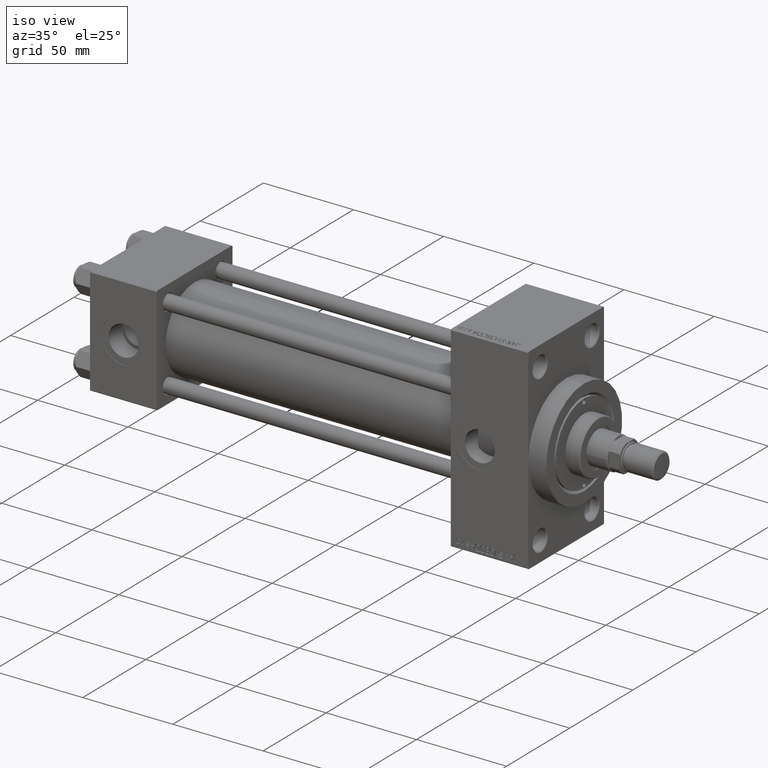
[diagram: clean part render]
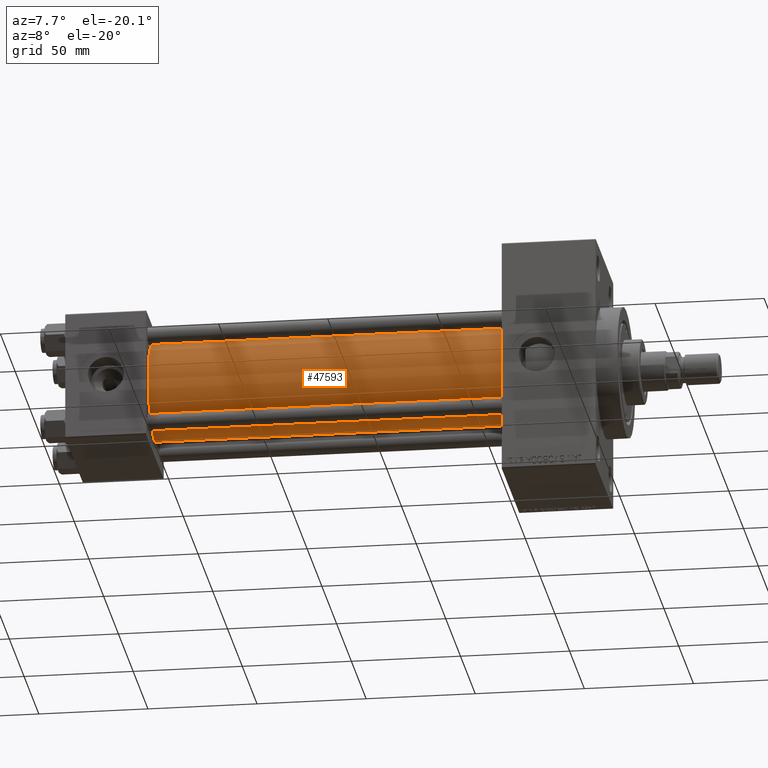
[diagram: tour spotlight — one face highlighted and labeled with its STEP entity id]
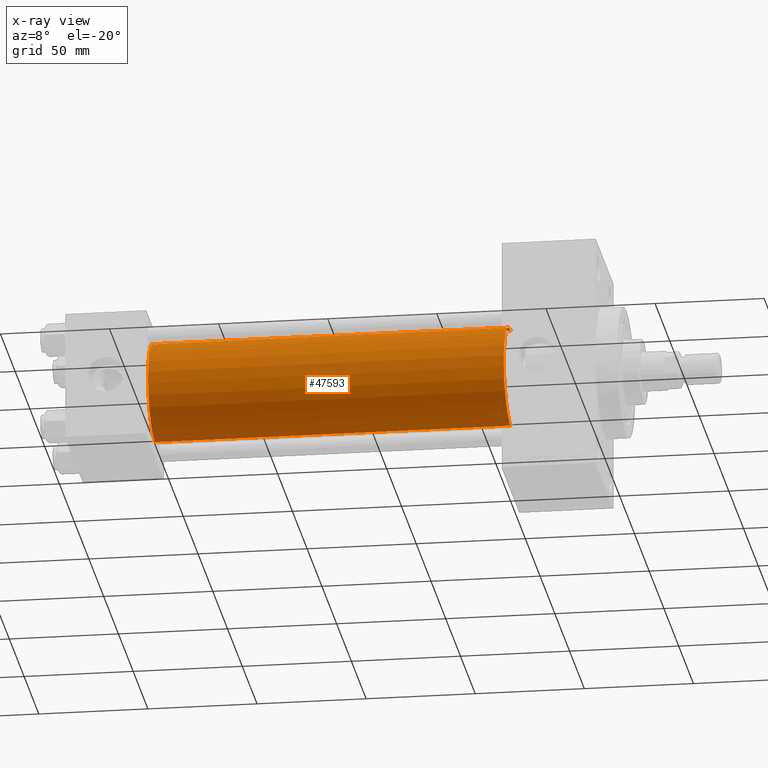
[diagram: x-ray of the same camera — body ghosted, this tour face saturated]
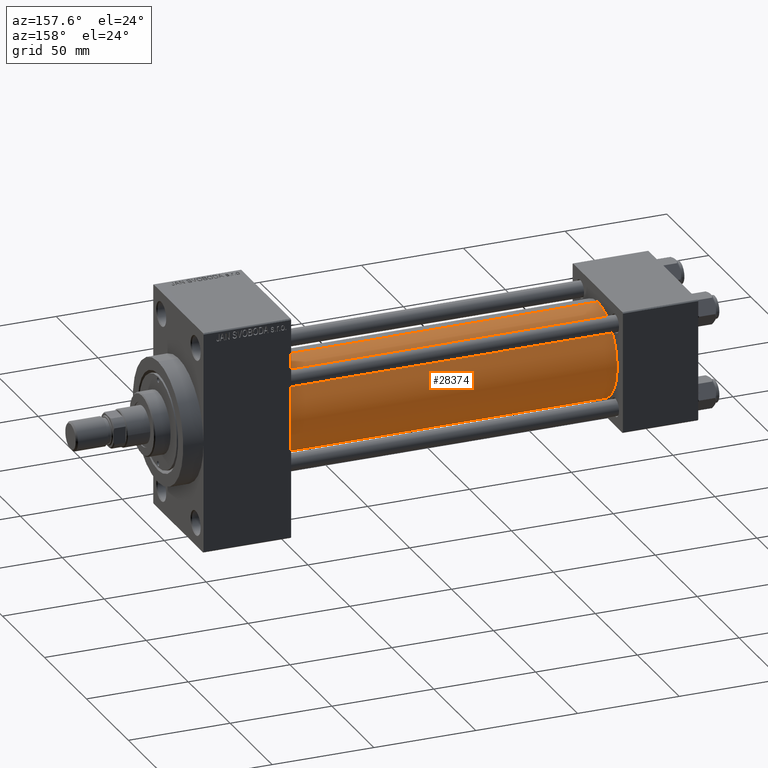
[diagram: tour spotlight — one face highlighted and labeled with its STEP entity id]
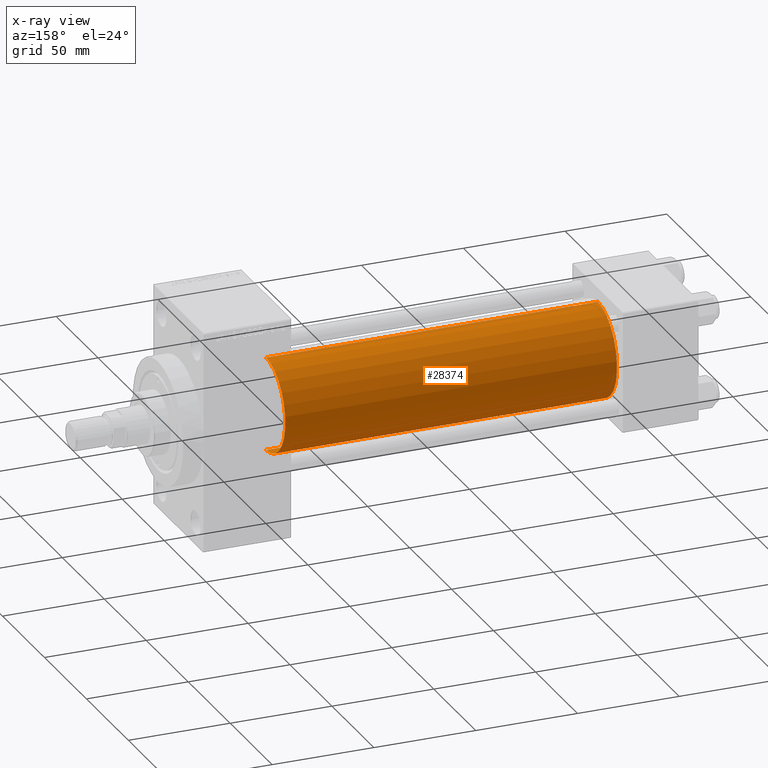
[diagram: x-ray of the same camera — body ghosted, this tour face saturated]
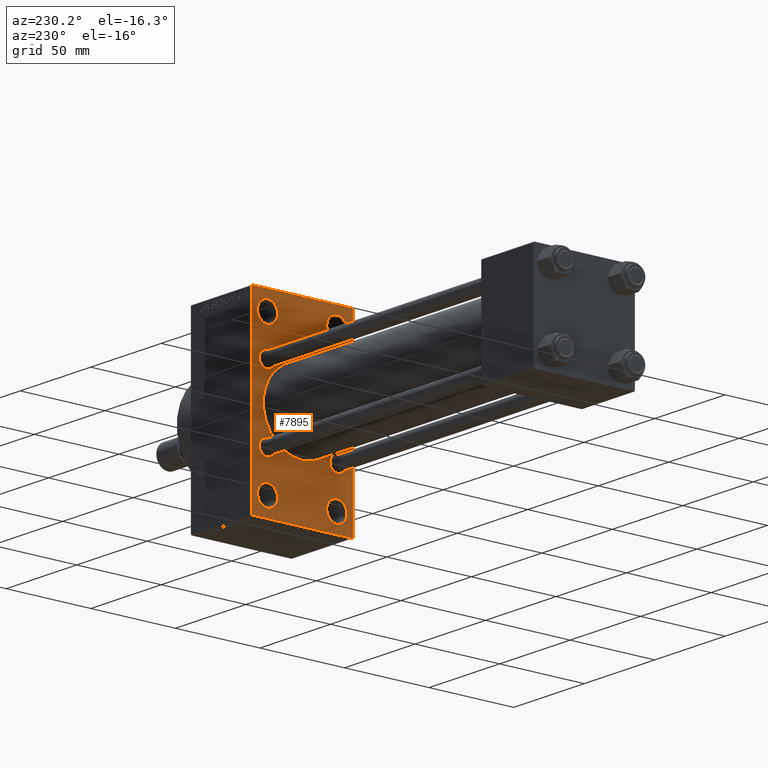
[diagram: tour spotlight — one face highlighted and labeled with its STEP entity id]
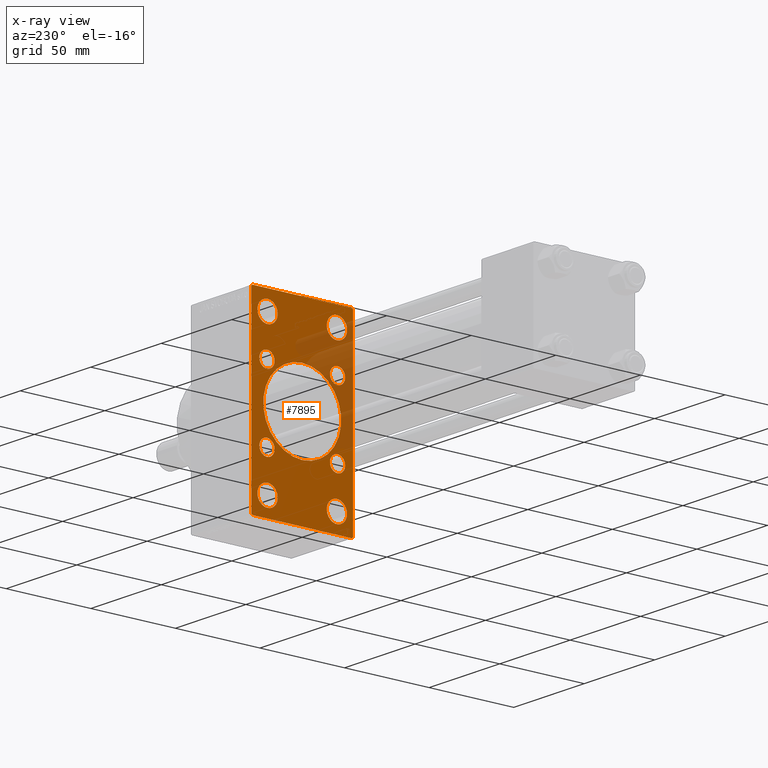
[diagram: x-ray of the same camera — body ghosted, this tour face saturated]
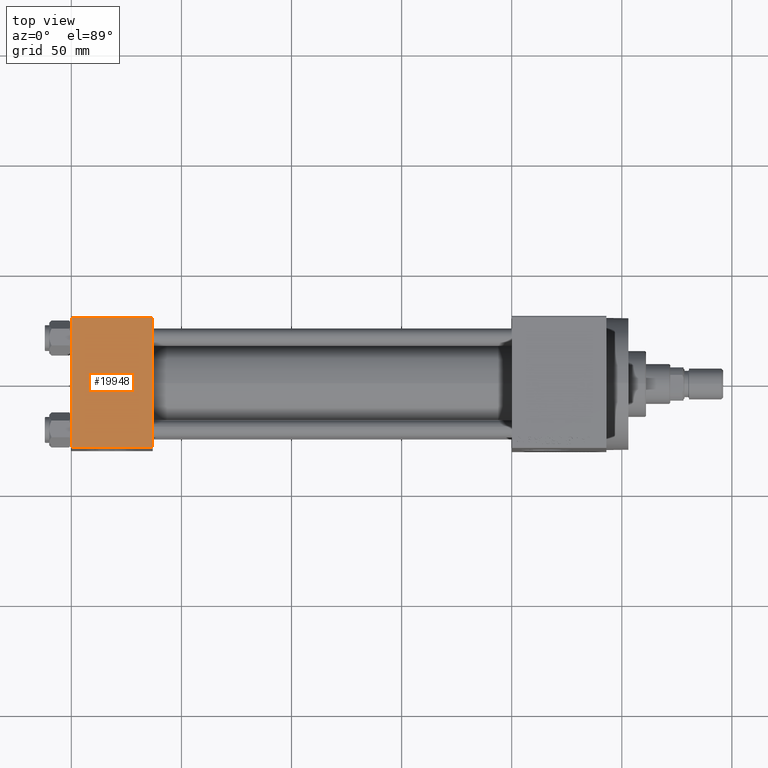
[diagram: tour spotlight — one face highlighted and labeled with its STEP entity id]
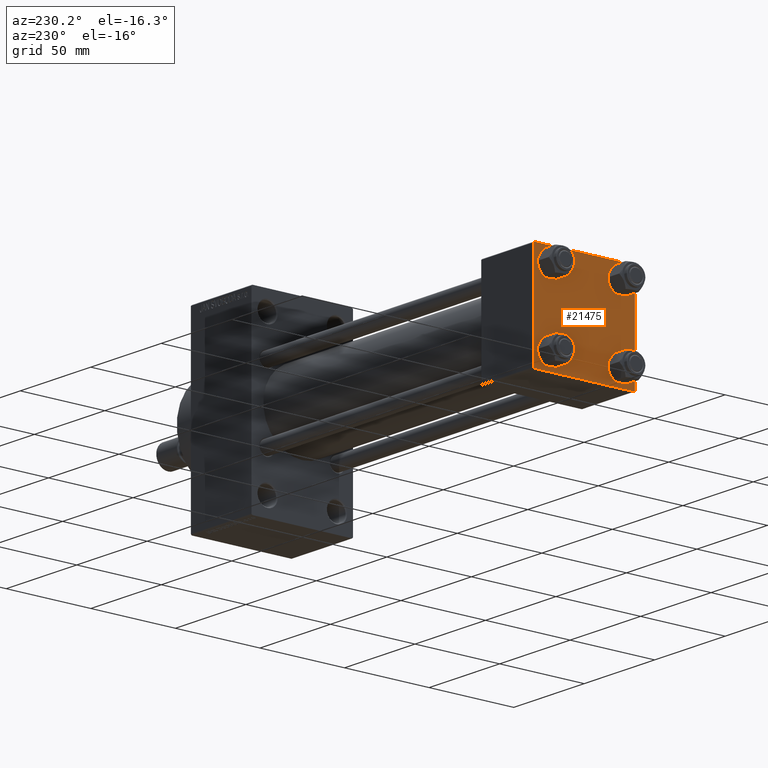
[diagram: tour spotlight — one face highlighted and labeled with its STEP entity id]
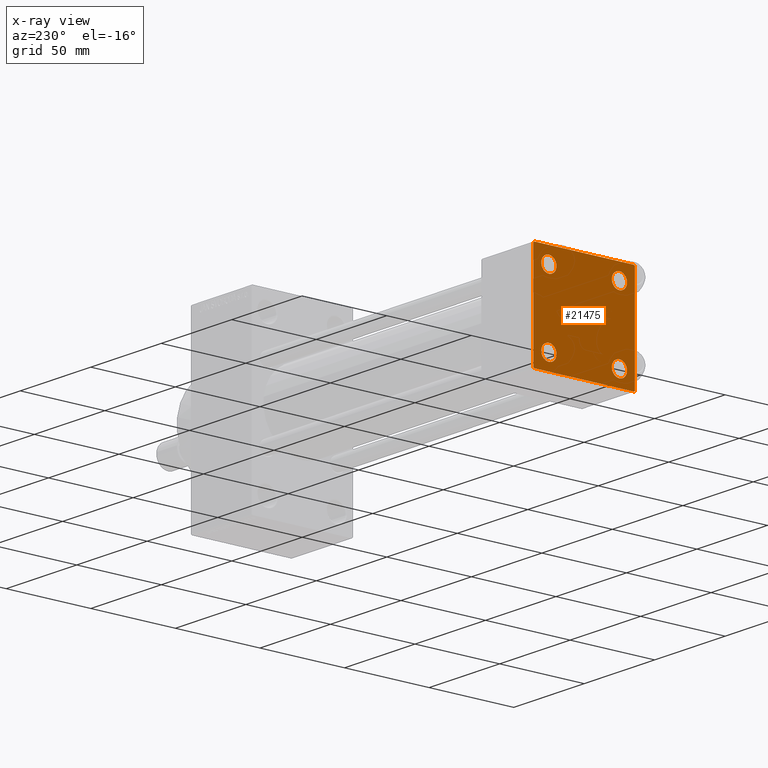
[diagram: x-ray of the same camera — body ghosted, this tour face saturated]
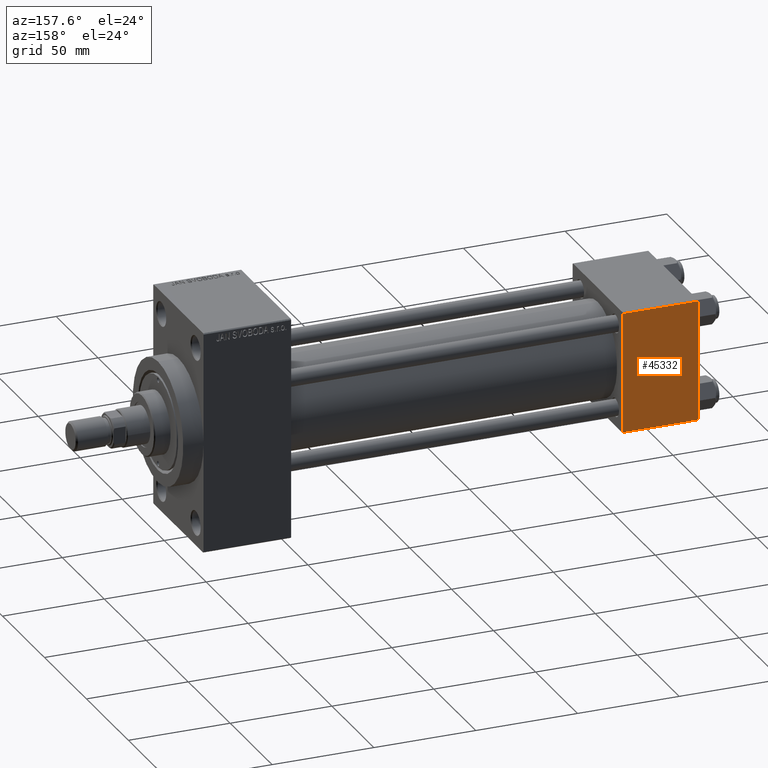
[diagram: tour spotlight — one face highlighted and labeled with its STEP entity id]
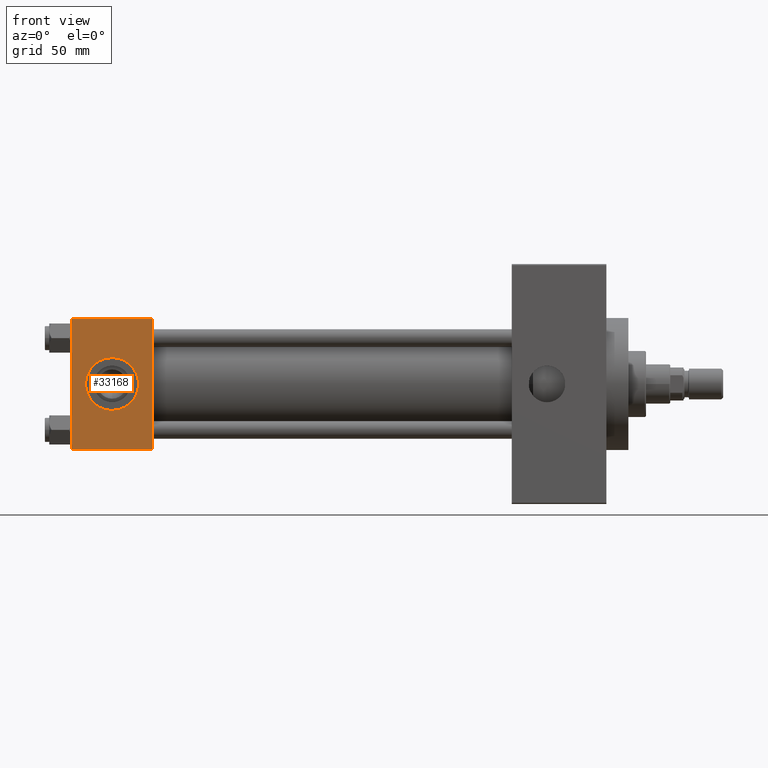
[diagram: tour spotlight — one face highlighted and labeled with its STEP entity id]
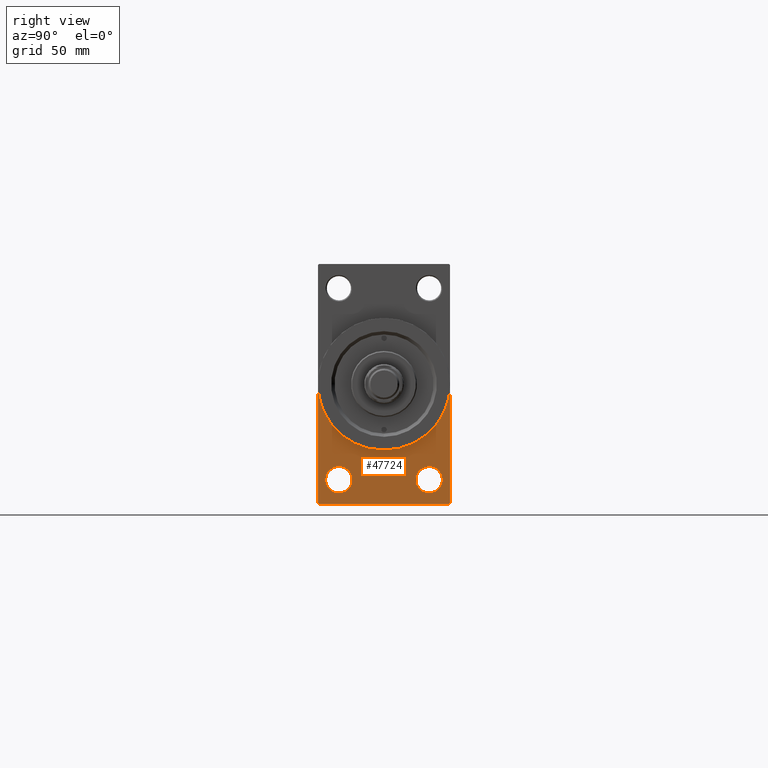
[diagram: tour spotlight — one face highlighted and labeled with its STEP entity id]
A machine part: a face-by-face anatomy tour. The part has 1127 B-rep faces; the first image is the clean iso view, then the 8 largest visible faces are spotlighted one at a time (largest first), each with its STEP entity span.

Face 1 — auxiliary view, entity #47593. An x-ray twin of the same camera follows (body ghosted, this face saturated) — the face is partly hidden behind the body. In plain terms, the highlighted cylindrical surface (partial cylindrical patch) has radius 23 mm, axis along (-1, -0, -0).
Definition (entity closure, byte-faithful):
#1023 = EDGE_CURVE ( 'NONE', #47668, #47522, #10748, .T. ) ;
#1608 = CARTESIAN_POINT ( 'NONE',  ( 200.0000000000000000, -2.602085213965210642E-15, 0.000000000000000000 ) ) ;
#1631 = CARTESIAN_POINT ( 'NONE',  ( 200.0000000000000000, 2.146024240737016609E-16, -23.00000000000000000 ) ) ;
#1660 = CARTESIAN_POINT ( 'NONE',  ( 200.0000000000000000, -2.602085213965210642E-15, 0.000000000000000000 ) ) ;
#7639 = VERTEX_POINT ( 'NONE', #15472 ) ;
#9372 = DIRECTION ( 'NONE',  ( -1.000000000000000000, -0.000000000000000000, -0.000000000000000000 ) ) ;
#10441 = ORIENTED_EDGE ( 'NONE', *, *, #36730, .F. ) ;
#10748 = CIRCLE ( 'NONE', #14639, 23.00000000000000000 ) ;
#11498 = CARTESIAN_POINT ( 'NONE',  ( 37.00000000000000711, -2.602085213965210642E-15, 23.00000000000000000 ) ) ;
#12592 = ORIENTED_EDGE ( 'NONE', *, *, #44326, .F. ) ;
#12818 = DIRECTION ( 'NONE',  ( 1.000000000000000000, 0.000000000000000000, 0.000000000000000000 ) ) ;
#14639 = AXIS2_PLACEMENT_3D ( 'NONE', #23954, #24674, #35569 ) ;
#15182 = ORIENTED_EDGE ( 'NONE', *, *, #1023, .T. ) ;
#15472 = CARTESIAN_POINT ( 'NONE',  ( 200.0000000000000000, -2.602085213965210642E-15, 23.00000000000000000 ) ) ;
#15993 = VERTEX_POINT ( 'NONE', #42128 ) ;
#16375 = CIRCLE ( 'NONE', #25700, 23.00000000000000000 ) ;
#18722 = ORIENTED_EDGE ( 'NONE', *, *, #25039, .T. ) ;
#19595 = LINE ( 'NONE', #1631, #20530 ) ;
#20530 = VECTOR ( 'NONE', #34610, 1000.000000000000000 ) ;
#20853 = CARTESIAN_POINT ( 'NONE',  ( 200.0000000000000000, -2.602085213965210642E-15, 23.00000000000000000 ) ) ;
#23954 = CARTESIAN_POINT ( 'NONE',  ( 37.00000000000000711, -2.602085213965210642E-15, 0.000000000000000000 ) ) ;
#24674 = DIRECTION ( 'NONE',  ( 1.000000000000000000, -0.000000000000000000, 0.000000000000000000 ) ) ;
#25039 = EDGE_CURVE ( 'NONE', #7639, #47668, #39259, .T. ) ;
#25700 = AXIS2_PLACEMENT_3D ( 'NONE', #1660, #12818, #30540 ) ;
#28380 = DIRECTION ( 'NONE',  ( -1.000000000000000000, -0.000000000000000000, -0.000000000000000000 ) ) ;
#29321 = EDGE_LOOP ( 'NONE', ( #12592, #10441, #18722, #15182 ) ) ;
#30540 = DIRECTION ( 'NONE',  ( 0.000000000000000000, 0.000000000000000000, -1.000000000000000000 ) ) ;
#30840 = VECTOR ( 'NONE', #28380, 1000.000000000000000 ) ;
#32183 = FACE_OUTER_BOUND ( 'NONE', #29321, .T. ) ;
#34610 = DIRECTION ( 'NONE',  ( -1.000000000000000000, -0.000000000000000000, -0.000000000000000000 ) ) ;
#35319 = DIRECTION ( 'NONE',  ( 0.000000000000000000, 0.000000000000000000, 1.000000000000000000 ) ) ;
#35569 = DIRECTION ( 'NONE',  ( 0.000000000000000000, 0.000000000000000000, 1.000000000000000000 ) ) ;
#36730 = EDGE_CURVE ( 'NONE', #7639, #15993, #16375, .T. ) ;
#39259 = LINE ( 'NONE', #20853, #30840 ) ;
#39284 = AXIS2_PLACEMENT_3D ( 'NONE', #1608, #9372, #35319 ) ;
#42128 = CARTESIAN_POINT ( 'NONE',  ( 200.0000000000000000, 2.146024240737016609E-16, -23.00000000000000000 ) ) ;
#44326 = EDGE_CURVE ( 'NONE', #15993, #47522, #19595, .T. ) ;
#45960 = CARTESIAN_POINT ( 'NONE',  ( 37.00000000000000711, 2.146024240737016609E-16, -23.00000000000000000 ) ) ;
#46918 = CYLINDRICAL_SURFACE ( 'NONE', #39284, 23.00000000000000000 ) ;
#47522 = VERTEX_POINT ( 'NONE', #45960 ) ;
#47593 = ADVANCED_FACE ( 'NONE', ( #32183 ), #46918, .T. ) ;
#47668 = VERTEX_POINT ( 'NONE', #11498 ) ;

Face 2 — auxiliary view, entity #28374. An x-ray twin of the same camera follows (body ghosted, this face saturated) — the face is partly hidden behind the body. In plain terms, the highlighted cylindrical surface (partial cylindrical patch) has radius 23 mm, axis along (-1, -0, -0).
Definition (entity closure, byte-faithful):
#1631 = CARTESIAN_POINT ( 'NONE',  ( 200.0000000000000000, 2.146024240737016609E-16, -23.00000000000000000 ) ) ;
#4750 = DIRECTION ( 'NONE',  ( -1.000000000000000000, -0.000000000000000000, -0.000000000000000000 ) ) ;
#7639 = VERTEX_POINT ( 'NONE', #15472 ) ;
#9337 = ORIENTED_EDGE ( 'NONE', *, *, #41156, .F. ) ;
#11498 = CARTESIAN_POINT ( 'NONE',  ( 37.00000000000000711, -2.602085213965210642E-15, 23.00000000000000000 ) ) ;
#13558 = ORIENTED_EDGE ( 'NONE', *, *, #44326, .T. ) ;
#15472 = CARTESIAN_POINT ( 'NONE',  ( 200.0000000000000000, -2.602085213965210642E-15, 23.00000000000000000 ) ) ;
#15993 = VERTEX_POINT ( 'NONE', #42128 ) ;
#17485 = CARTESIAN_POINT ( 'NONE',  ( 200.0000000000000000, -2.602085213965210642E-15, 0.000000000000000000 ) ) ;
#19595 = LINE ( 'NONE', #1631, #20530 ) ;
#20441 = CARTESIAN_POINT ( 'NONE',  ( 37.00000000000000711, -2.602085213965210642E-15, 0.000000000000000000 ) ) ;
#20530 = VECTOR ( 'NONE', #34610, 1000.000000000000000 ) ;
#20853 = CARTESIAN_POINT ( 'NONE',  ( 200.0000000000000000, -2.602085213965210642E-15, 23.00000000000000000 ) ) ;
#23078 = EDGE_CURVE ( 'NONE', #47522, #47668, #36185, .T. ) ;
#23208 = CYLINDRICAL_SURFACE ( 'NONE', #28654, 23.00000000000000000 ) ;
#25039 = EDGE_CURVE ( 'NONE', #7639, #47668, #39259, .T. ) ;
#27663 = AXIS2_PLACEMENT_3D ( 'NONE', #20441, #46093, #35698 ) ;
#27748 = EDGE_LOOP ( 'NONE', ( #9337, #13558, #29905, #32086 ) ) ;
#28374 = ADVANCED_FACE ( 'NONE', ( #41587 ), #23208, .T. ) ;
#28380 = DIRECTION ( 'NONE',  ( -1.000000000000000000, -0.000000000000000000, -0.000000000000000000 ) ) ;
#28654 = AXIS2_PLACEMENT_3D ( 'NONE', #37983, #4750, #34346 ) ;
#29905 = ORIENTED_EDGE ( 'NONE', *, *, #23078, .T. ) ;
#30840 = VECTOR ( 'NONE', #28380, 1000.000000000000000 ) ;
#32086 = ORIENTED_EDGE ( 'NONE', *, *, #25039, .F. ) ;
#34346 = DIRECTION ( 'NONE',  ( 0.000000000000000000, 0.000000000000000000, 1.000000000000000000 ) ) ;
#34610 = DIRECTION ( 'NONE',  ( -1.000000000000000000, -0.000000000000000000, -0.000000000000000000 ) ) ;
#35698 = DIRECTION ( 'NONE',  ( 0.000000000000000000, 0.000000000000000000, 1.000000000000000000 ) ) ;
#36185 = CIRCLE ( 'NONE', #27663, 23.00000000000000000 ) ;
#37434 = CIRCLE ( 'NONE', #45926, 23.00000000000000000 ) ;
#37983 = CARTESIAN_POINT ( 'NONE',  ( 200.0000000000000000, -2.602085213965210642E-15, 0.000000000000000000 ) ) ;
#39259 = LINE ( 'NONE', #20853, #30840 ) ;
#41156 = EDGE_CURVE ( 'NONE', #15993, #7639, #37434, .T. ) ;
#41587 = FACE_OUTER_BOUND ( 'NONE', #27748, .T. ) ;
#42128 = CARTESIAN_POINT ( 'NONE',  ( 200.0000000000000000, 2.146024240737016609E-16, -23.00000000000000000 ) ) ;
#42662 = DIRECTION ( 'NONE',  ( 0.000000000000000000, 0.000000000000000000, -1.000000000000000000 ) ) ;
#44326 = EDGE_CURVE ( 'NONE', #15993, #47522, #19595, .T. ) ;
#45926 = AXIS2_PLACEMENT_3D ( 'NONE', #17485, #47016, #42662 ) ;
#45960 = CARTESIAN_POINT ( 'NONE',  ( 37.00000000000000711, 2.146024240737016609E-16, -23.00000000000000000 ) ) ;
#46093 = DIRECTION ( 'NONE',  ( 1.000000000000000000, -0.000000000000000000, 0.000000000000000000 ) ) ;
#47016 = DIRECTION ( 'NONE',  ( 1.000000000000000000, 0.000000000000000000, 0.000000000000000000 ) ) ;
#47522 = VERTEX_POINT ( 'NONE', #45960 ) ;
#47668 = VERTEX_POINT ( 'NONE', #11498 ) ;

Face 3 — auxiliary view, entity #7895. An x-ray twin of the same camera follows (body ghosted, this face saturated) — the face is partly hidden behind the body. In plain terms, the highlighted planar face has unit normal (-1, 0, 0).
Definition (entity closure, byte-faithful):
#254 = DIRECTION ( 'NONE',  ( 1.000000000000000000, -0.000000000000000000, 0.000000000000000000 ) ) ;
#719 = EDGE_CURVE ( 'NONE', #24432, #4180, #24734, .T. ) ;
#951 = EDGE_CURVE ( 'NONE', #7527, #32624, #43217, .T. ) ;
#1220 = CARTESIAN_POINT ( 'NONE',  ( 200.0000000000000000, 20.50000000000000000, 49.49999999999997158 ) ) ;
#1595 = DIRECTION ( 'NONE',  ( 1.000000000000000000, -0.000000000000000000, 0.000000000000000000 ) ) ;
#1660 = CARTESIAN_POINT ( 'NONE',  ( 200.0000000000000000, -2.602085213965210642E-15, 0.000000000000000000 ) ) ;
#1842 = CARTESIAN_POINT ( 'NONE',  ( 200.0000000000000000, 29.99999999999999645, 54.49999999999999289 ) ) ;
#1920 = CARTESIAN_POINT ( 'NONE',  ( 200.0000000000000000, -20.50000000000000000, 37.50000000000002132 ) ) ;
#1951 = DIRECTION ( 'NONE',  ( 0.000000000000000000, 0.000000000000000000, 1.000000000000000000 ) ) ;
#2132 = AXIS2_PLACEMENT_3D ( 'NONE', #6036, #46259, #13577 ) ;
#2305 = CARTESIAN_POINT ( 'NONE',  ( 200.0000000000000000, 42.00000000000081002, 41.99999999999847944 ) ) ;
#2318 = CARTESIAN_POINT ( 'NONE',  ( 200.0000000000000000, -20.50000000000000000, -43.50000000000000000 ) ) ;
#2325 = EDGE_LOOP ( 'NONE', ( #36808, #33235 ) ) ;
#2462 = CIRCLE ( 'NONE', #44240, 4.500000000000007105 ) ;
#2491 = VERTEX_POINT ( 'NONE', #14553 ) ;
#2629 = ORIENTED_EDGE ( 'NONE', *, *, #25948, .T. ) ;
#2777 = DIRECTION ( 'NONE',  ( 0.000000000000000000, -0.7071067811865352493, 0.7071067811865597852 ) ) ;
#2831 = VERTEX_POINT ( 'NONE', #9400 ) ;
#2884 = EDGE_CURVE ( 'NONE', #40509, #13570, #43796, .T. ) ;
#3068 = LINE ( 'NONE', #42637, #44903 ) ;
#3278 = CARTESIAN_POINT ( 'NONE',  ( 200.0000000000000000, -20.84999999999999076, 25.35000000000001208 ) ) ;
#3296 = VERTEX_POINT ( 'NONE', #24762 ) ;
#3614 = CARTESIAN_POINT ( 'NONE',  ( 200.0000000000000000, 29.49999999999996803, -54.49999999999999289 ) ) ;
#3997 = LINE ( 'NONE', #47652, #36255 ) ;
#4180 = VERTEX_POINT ( 'NONE', #40932 ) ;
#4375 = EDGE_CURVE ( 'NONE', #34769, #35128, #38591, .T. ) ;
#4393 = CARTESIAN_POINT ( 'NONE',  ( 200.0000000000000000, 20.50000000000000000, 37.50000000000002132 ) ) ;
#4641 = EDGE_CURVE ( 'NONE', #4706, #28890, #5229, .T. ) ;
#4706 = VERTEX_POINT ( 'NONE', #20527 ) ;
#5036 = CARTESIAN_POINT ( 'NONE',  ( 200.0000000000000000, -20.84999999999999076, 20.85000000000000497 ) ) ;
#5110 = DIRECTION ( 'NONE',  ( 1.000000000000000000, -0.000000000000000000, 0.000000000000000000 ) ) ;
#5215 = EDGE_CURVE ( 'NONE', #10354, #4180, #24622, .T. ) ;
#5229 = LINE ( 'NONE', #1842, #18468 ) ;
#5479 = DIRECTION ( 'NONE',  ( 0.000000000000000000, 0.000000000000000000, 1.000000000000000000 ) ) ;
#5964 = DIRECTION ( 'NONE',  ( 0.000000000000000000, 0.000000000000000000, 1.000000000000000000 ) ) ;
#6036 = CARTESIAN_POINT ( 'NONE',  ( 200.0000000000000000, -20.84999999999999076, -20.85000000000000497 ) ) ;
#6067 = VECTOR ( 'NONE', #28375, 1000.000000000000000 ) ;
#6245 = DIRECTION ( 'NONE',  ( 0.000000000000000000, 0.000000000000000000, 1.000000000000000000 ) ) ;
#6942 = EDGE_CURVE ( 'NONE', #4706, #40509, #31670, .T. ) ;
#6993 = ORIENTED_EDGE ( 'NONE', *, *, #44112, .T. ) ;
#7286 = ORIENTED_EDGE ( 'NONE', *, *, #35789, .T. ) ;
#7527 = VERTEX_POINT ( 'NONE', #34450 ) ;
#7561 = CIRCLE ( 'NONE', #40849, 5.999999999999977796 ) ;
#7639 = VERTEX_POINT ( 'NONE', #15472 ) ;
#7732 = FACE_BOUND ( 'NONE', #34805, .T. ) ;
#7835 = CIRCLE ( 'NONE', #29619, 5.999999999999977796 ) ;
#7895 = ADVANCED_FACE ( 'NONE', ( #44794, #15985, #45277, #11858, #7732, #26418, #27142, #19624, #22546, #37321 ), #41898, .T. ) ;
#7933 = DIRECTION ( 'NONE',  ( 0.000000000000000000, 0.000000000000000000, 1.000000000000000000 ) ) ;
#8601 = CIRCLE ( 'NONE', #44945, 4.500000000000007105 ) ;
#8709 = VERTEX_POINT ( 'NONE', #4393 ) ;
#8896 = CARTESIAN_POINT ( 'NONE',  ( 200.0000000000000000, 20.84999999999999787, -20.85000000000000142 ) ) ;
#9400 = CARTESIAN_POINT ( 'NONE',  ( 200.0000000000000000, 20.84999999999999787, 16.34999999999999432 ) ) ;
#9440 = DIRECTION ( 'NONE',  ( -0.000000000000000000, -0.7071067811865672237, -0.7071067811865279218 ) ) ;
#9639 = DIRECTION ( 'NONE',  ( 1.000000000000000000, -0.000000000000000000, 0.000000000000000000 ) ) ;
#10103 = ORIENTED_EDGE ( 'NONE', *, *, #35612, .T. ) ;
#10354 = VERTEX_POINT ( 'NONE', #42285 ) ;
#10434 = DIRECTION ( 'NONE',  ( 0.000000000000000000, 0.000000000000000000, 1.000000000000000000 ) ) ;
#10466 = AXIS2_PLACEMENT_3D ( 'NONE', #43619, #13596, #10434 ) ;
#10609 = CARTESIAN_POINT ( 'NONE',  ( 200.0000000000000000, 29.99999999999999645, 54.49999999999999289 ) ) ;
#10949 = DIRECTION ( 'NONE',  ( 0.000000000000000000, 0.000000000000000000, 1.000000000000000000 ) ) ;
#11153 = ORIENTED_EDGE ( 'NONE', *, *, #25293, .T. ) ;
#11558 = EDGE_LOOP ( 'NONE', ( #15505, #24325 ) ) ;
#11684 = EDGE_CURVE ( 'NONE', #16496, #34412, #2462, .T. ) ;
#11833 = CIRCLE ( 'NONE', #41229, 4.500000000000007105 ) ;
#11858 = FACE_BOUND ( 'NONE', #11558, .T. ) ;
#11892 = EDGE_CURVE ( 'NONE', #40934, #2831, #35773, .T. ) ;
#12094 = DIRECTION ( 'NONE',  ( -1.000000000000000000, 0.000000000000000000, -0.000000000000000000 ) ) ;
#12126 = CARTESIAN_POINT ( 'NONE',  ( 200.0000000000000000, -20.50000000000000000, 43.50000000000000000 ) ) ;
#12394 = EDGE_CURVE ( 'NONE', #8709, #20467, #7835, .T. ) ;
#12417 = CIRCLE ( 'NONE', #18621, 5.999999999999977796 ) ;
#12818 = DIRECTION ( 'NONE',  ( 1.000000000000000000, 0.000000000000000000, 0.000000000000000000 ) ) ;
#12850 = CARTESIAN_POINT ( 'NONE',  ( 200.0000000000000000, -20.84999999999999076, 16.34999999999999787 ) ) ;
#13570 = VERTEX_POINT ( 'NONE', #42201 ) ;
#13577 = DIRECTION ( 'NONE',  ( 0.000000000000000000, 0.000000000000000000, 1.000000000000000000 ) ) ;
#13596 = DIRECTION ( 'NONE',  ( 1.000000000000000000, -0.000000000000000000, 0.000000000000000000 ) ) ;
#13847 = CARTESIAN_POINT ( 'NONE',  ( 200.0000000000000000, 20.50000000000000000, 43.50000000000000000 ) ) ;
#14202 = CARTESIAN_POINT ( 'NONE',  ( 200.0000000000000000, -42.00000000000052580, -41.99999999999906919 ) ) ;
#14553 = CARTESIAN_POINT ( 'NONE',  ( 200.0000000000000000, 20.50000000000000000, -37.50000000000002132 ) ) ;
#15343 = ORIENTED_EDGE ( 'NONE', *, *, #21746, .T. ) ;
#15362 = AXIS2_PLACEMENT_3D ( 'NONE', #44131, #33491, #10949 ) ;
#15426 = ORIENTED_EDGE ( 'NONE', *, *, #719, .F. ) ;
#15472 = CARTESIAN_POINT ( 'NONE',  ( 200.0000000000000000, -2.602085213965210642E-15, 23.00000000000000000 ) ) ;
#15505 = ORIENTED_EDGE ( 'NONE', *, *, #36400, .T. ) ;
#15678 = AXIS2_PLACEMENT_3D ( 'NONE', #23570, #5110, #37853 ) ;
#15707 = DIRECTION ( 'NONE',  ( 1.000000000000000000, -0.000000000000000000, 0.000000000000000000 ) ) ;
#15811 = EDGE_CURVE ( 'NONE', #34412, #16496, #11833, .T. ) ;
#15985 = FACE_BOUND ( 'NONE', #41293, .T. ) ;
#15993 = VERTEX_POINT ( 'NONE', #42128 ) ;
#16375 = CIRCLE ( 'NONE', #25700, 23.00000000000000000 ) ;
#16496 = VERTEX_POINT ( 'NONE', #3278 ) ;
#17485 = CARTESIAN_POINT ( 'NONE',  ( 200.0000000000000000, -2.602085213965210642E-15, 0.000000000000000000 ) ) ;
#17524 = ORIENTED_EDGE ( 'NONE', *, *, #2884, .T. ) ;
#17667 = CARTESIAN_POINT ( 'NONE',  ( 200.0000000000000000, -41.99999999999928235, 42.00000000000132871 ) ) ;
#18161 = EDGE_LOOP ( 'NONE', ( #11153, #33705, #15426, #10103, #22037, #42269, #17524, #31041 ) ) ;
#18468 = VECTOR ( 'NONE', #20035, 1000.000000000000000 ) ;
#18621 = AXIS2_PLACEMENT_3D ( 'NONE', #24425, #39186, #5964 ) ;
#18902 = DIRECTION ( 'NONE',  ( -0.000000000000000000, 0.000000000000000000, 1.000000000000000000 ) ) ;
#19433 = CARTESIAN_POINT ( 'NONE',  ( 200.0000000000000000, -29.50000000000000355, 54.50000000000000000 ) ) ;
#19624 = FACE_BOUND ( 'NONE', #24402, .T. ) ;
#20035 = DIRECTION ( 'NONE',  ( 0.000000000000000000, -1.000000000000000000, 1.156482317317871478E-16 ) ) ;
#20291 = CARTESIAN_POINT ( 'NONE',  ( 200.0000000000000000, 29.99999999999999645, 53.99999999999996447 ) ) ;
#20334 = DIRECTION ( 'NONE',  ( 1.000000000000000000, -0.000000000000000000, 0.000000000000000000 ) ) ;
#20467 = VERTEX_POINT ( 'NONE', #1220 ) ;
#20527 = CARTESIAN_POINT ( 'NONE',  ( 200.0000000000000000, 29.49999999999999645, 54.49999999999999289 ) ) ;
#21094 = CARTESIAN_POINT ( 'NONE',  ( 200.0000000000000000, -30.00000000000000000, 54.50000000000000000 ) ) ;
#21746 = EDGE_CURVE ( 'NONE', #2491, #37284, #7561, .T. ) ;
#22037 = ORIENTED_EDGE ( 'NONE', *, *, #4641, .F. ) ;
#22546 = FACE_BOUND ( 'NONE', #2325, .T. ) ;
#22983 = EDGE_LOOP ( 'NONE', ( #34644, #2629 ) ) ;
#23247 = EDGE_CURVE ( 'NONE', #36494, #3296, #44631, .T. ) ;
#23398 = CARTESIAN_POINT ( 'NONE',  ( 200.0000000000000000, 20.84999999999999787, 25.35000000000000853 ) ) ;
#23513 = ORIENTED_EDGE ( 'NONE', *, *, #11892, .T. ) ;
#23570 = CARTESIAN_POINT ( 'NONE',  ( 200.0000000000000000, 20.50000000000000000, 43.50000000000000000 ) ) ;
#23647 = DIRECTION ( 'NONE',  ( 1.000000000000000000, -0.000000000000000000, 0.000000000000000000 ) ) ;
#24200 = EDGE_CURVE ( 'NONE', #3296, #36494, #31578, .T. ) ;
#24325 = ORIENTED_EDGE ( 'NONE', *, *, #12394, .T. ) ;
#24402 = EDGE_LOOP ( 'NONE', ( #24634, #42869 ) ) ;
#24425 = CARTESIAN_POINT ( 'NONE',  ( 200.0000000000000000, 20.50000000000000000, -43.50000000000000000 ) ) ;
#24432 = VERTEX_POINT ( 'NONE', #35085 ) ;
#24622 = LINE ( 'NONE', #14202, #30109 ) ;
#24634 = ORIENTED_EDGE ( 'NONE', *, *, #23247, .T. ) ;
#24734 = LINE ( 'NONE', #21094, #6067 ) ;
#24762 = CARTESIAN_POINT ( 'NONE',  ( 200.0000000000000000, -20.84999999999999076, -25.35000000000001208 ) ) ;
#25188 = CIRCLE ( 'NONE', #10466, 4.500000000000007105 ) ;
#25293 = EDGE_CURVE ( 'NONE', #26934, #10354, #3997, .T. ) ;
#25700 = AXIS2_PLACEMENT_3D ( 'NONE', #1660, #12818, #30540 ) ;
#25948 = EDGE_CURVE ( 'NONE', #35128, #34769, #44702, .T. ) ;
#26418 = FACE_BOUND ( 'NONE', #39721, .T. ) ;
#26450 = DIRECTION ( 'NONE',  ( 1.000000000000000000, -0.000000000000000000, 0.000000000000000000 ) ) ;
#26616 = DIRECTION ( 'NONE',  ( 1.000000000000000000, -0.000000000000000000, 0.000000000000000000 ) ) ;
#26882 = CARTESIAN_POINT ( 'NONE',  ( 200.0000000000000000, -20.50000000000000000, 43.50000000000000000 ) ) ;
#26934 = VERTEX_POINT ( 'NONE', #3614 ) ;
#26984 = VERTEX_POINT ( 'NONE', #38502 ) ;
#27142 = FACE_BOUND ( 'NONE', #28760, .T. ) ;
#27319 = CIRCLE ( 'NONE', #29643, 5.999999999999977796 ) ;
#27579 = DIRECTION ( 'NONE',  ( 0.000000000000000000, 0.000000000000000000, 1.000000000000000000 ) ) ;
#27889 = AXIS2_PLACEMENT_3D ( 'NONE', #38044, #12094, #18902 ) ;
#28375 = DIRECTION ( 'NONE',  ( 0.000000000000000000, 0.000000000000000000, -1.000000000000000000 ) ) ;
#28554 = AXIS2_PLACEMENT_3D ( 'NONE', #26882, #44786, #30286 ) ;
#28760 = EDGE_LOOP ( 'NONE', ( #6993, #42154 ) ) ;
#28890 = VERTEX_POINT ( 'NONE', #19433 ) ;
#29077 = DIRECTION ( 'NONE',  ( -0.000000000000000000, 0.7071067811865647812, 0.7071067811865302533 ) ) ;
#29271 = DIRECTION ( 'NONE',  ( 0.000000000000000000, -1.000000000000000000, -1.156482317317871478E-16 ) ) ;
#29619 = AXIS2_PLACEMENT_3D ( 'NONE', #13847, #39053, #1951 ) ;
#29643 = AXIS2_PLACEMENT_3D ( 'NONE', #2318, #1595, #5479 ) ;
#30011 = ORIENTED_EDGE ( 'NONE', *, *, #11684, .T. ) ;
#30109 = VECTOR ( 'NONE', #2777, 1000.000000000000000 ) ;
#30286 = DIRECTION ( 'NONE',  ( 0.000000000000000000, 0.000000000000000000, 1.000000000000000000 ) ) ;
#30540 = DIRECTION ( 'NONE',  ( 0.000000000000000000, 0.000000000000000000, -1.000000000000000000 ) ) ;
#30732 = CARTESIAN_POINT ( 'NONE',  ( 200.0000000000000000, 20.84999999999999787, 20.85000000000000142 ) ) ;
#30758 = DIRECTION ( 'NONE',  ( 0.000000000000000000, 0.000000000000000000, 1.000000000000000000 ) ) ;
#30842 = CARTESIAN_POINT ( 'NONE',  ( 200.0000000000000000, 20.50000000000000000, -49.49999999999997158 ) ) ;
#30987 = EDGE_CURVE ( 'NONE', #37284, #2491, #12417, .T. ) ;
#31041 = ORIENTED_EDGE ( 'NONE', *, *, #31859, .T. ) ;
#31162 = CARTESIAN_POINT ( 'NONE',  ( 200.0000000000000000, 20.50000000000000000, -43.50000000000000000 ) ) ;
#31478 = CARTESIAN_POINT ( 'NONE',  ( 200.0000000000000000, -20.84999999999999076, 20.85000000000000497 ) ) ;
#31578 = CIRCLE ( 'NONE', #2132, 4.500000000000007105 ) ;
#31667 = AXIS2_PLACEMENT_3D ( 'NONE', #8896, #15707, #7933 ) ;
#31670 = LINE ( 'NONE', #2305, #37858 ) ;
#31730 = CARTESIAN_POINT ( 'NONE',  ( 200.0000000000000000, 20.84999999999999787, 20.85000000000000142 ) ) ;
#31859 = EDGE_CURVE ( 'NONE', #13570, #26934, #3068, .T. ) ;
#32521 = EDGE_CURVE ( 'NONE', #2831, #40934, #8601, .T. ) ;
#32624 = VERTEX_POINT ( 'NONE', #34596 ) ;
#33235 = ORIENTED_EDGE ( 'NONE', *, *, #41156, .T. ) ;
#33491 = DIRECTION ( 'NONE',  ( 1.000000000000000000, -0.000000000000000000, 0.000000000000000000 ) ) ;
#33673 = DIRECTION ( 'NONE',  ( 1.000000000000000000, -0.000000000000000000, 0.000000000000000000 ) ) ;
#33705 = ORIENTED_EDGE ( 'NONE', *, *, #5215, .T. ) ;
#34297 = EDGE_CURVE ( 'NONE', #26984, #36973, #37297, .T. ) ;
#34412 = VERTEX_POINT ( 'NONE', #12850 ) ;
#34450 = CARTESIAN_POINT ( 'NONE',  ( 200.0000000000000000, 20.84999999999999787, -25.35000000000000853 ) ) ;
#34596 = CARTESIAN_POINT ( 'NONE',  ( 200.0000000000000000, 20.84999999999999787, -16.34999999999999432 ) ) ;
#34644 = ORIENTED_EDGE ( 'NONE', *, *, #4375, .T. ) ;
#34769 = VERTEX_POINT ( 'NONE', #42118 ) ;
#34805 = EDGE_LOOP ( 'NONE', ( #30011, #39232 ) ) ;
#35085 = CARTESIAN_POINT ( 'NONE',  ( 200.0000000000000000, -30.00000000000000000, 54.00000000000002842 ) ) ;
#35128 = VERTEX_POINT ( 'NONE', #1920 ) ;
#35612 = EDGE_CURVE ( 'NONE', #24432, #28890, #46964, .T. ) ;
#35773 = CIRCLE ( 'NONE', #45752, 4.500000000000007105 ) ;
#35789 = EDGE_CURVE ( 'NONE', #36973, #26984, #27319, .T. ) ;
#36255 = VECTOR ( 'NONE', #29271, 1000.000000000000000 ) ;
#36400 = EDGE_CURVE ( 'NONE', #20467, #8709, #36604, .T. ) ;
#36494 = VERTEX_POINT ( 'NONE', #39294 ) ;
#36604 = CIRCLE ( 'NONE', #15678, 5.999999999999977796 ) ;
#36730 = EDGE_CURVE ( 'NONE', #7639, #15993, #16375, .T. ) ;
#36808 = ORIENTED_EDGE ( 'NONE', *, *, #36730, .T. ) ;
#36973 = VERTEX_POINT ( 'NONE', #42982 ) ;
#37284 = VERTEX_POINT ( 'NONE', #30842 ) ;
#37297 = CIRCLE ( 'NONE', #43495, 5.999999999999977796 ) ;
#37321 = FACE_OUTER_BOUND ( 'NONE', #18161, .T. ) ;
#37434 = CIRCLE ( 'NONE', #45926, 23.00000000000000000 ) ;
#37853 = DIRECTION ( 'NONE',  ( 0.000000000000000000, 0.000000000000000000, 1.000000000000000000 ) ) ;
#37858 = VECTOR ( 'NONE', #42785, 1000.000000000000000 ) ;
#38044 = CARTESIAN_POINT ( 'NONE',  ( 200.0000000000000000, 0.000000000000000000, 0.000000000000000000 ) ) ;
#38076 = DIRECTION ( 'NONE',  ( 0.000000000000000000, 0.000000000000000000, 1.000000000000000000 ) ) ;
#38502 = CARTESIAN_POINT ( 'NONE',  ( 200.0000000000000000, -20.50000000000000000, -37.50000000000002132 ) ) ;
#38591 = CIRCLE ( 'NONE', #28554, 5.999999999999977796 ) ;
#38653 = DIRECTION ( 'NONE',  ( 0.000000000000000000, 0.000000000000000000, 1.000000000000000000 ) ) ;
#39053 = DIRECTION ( 'NONE',  ( 1.000000000000000000, -0.000000000000000000, 0.000000000000000000 ) ) ;
#39148 = ORIENTED_EDGE ( 'NONE', *, *, #30987, .T. ) ;
#39186 = DIRECTION ( 'NONE',  ( 1.000000000000000000, -0.000000000000000000, 0.000000000000000000 ) ) ;
#39232 = ORIENTED_EDGE ( 'NONE', *, *, #15811, .T. ) ;
#39294 = CARTESIAN_POINT ( 'NONE',  ( 200.0000000000000000, -20.84999999999999076, -16.34999999999999787 ) ) ;
#39721 = EDGE_LOOP ( 'NONE', ( #23513, #46021 ) ) ;
#40509 = VERTEX_POINT ( 'NONE', #20291 ) ;
#40849 = AXIS2_PLACEMENT_3D ( 'NONE', #31162, #23647, #38653 ) ;
#40932 = CARTESIAN_POINT ( 'NONE',  ( 200.0000000000000000, -30.00000000000000000, -54.00000000000001421 ) ) ;
#40934 = VERTEX_POINT ( 'NONE', #23398 ) ;
#41156 = EDGE_CURVE ( 'NONE', #15993, #7639, #37434, .T. ) ;
#41229 = AXIS2_PLACEMENT_3D ( 'NONE', #31478, #9639, #46214 ) ;
#41293 = EDGE_LOOP ( 'NONE', ( #43876, #7286 ) ) ;
#41446 = CARTESIAN_POINT ( 'NONE',  ( 200.0000000000000000, -20.50000000000000000, -43.50000000000000000 ) ) ;
#41682 = EDGE_LOOP ( 'NONE', ( #15343, #39148 ) ) ;
#41686 = DIRECTION ( 'NONE',  ( 0.000000000000000000, 0.000000000000000000, 1.000000000000000000 ) ) ;
#41898 = PLANE ( 'NONE',  #27889 ) ;
#41992 = VECTOR ( 'NONE', #29077, 1000.000000000000114 ) ;
#42118 = CARTESIAN_POINT ( 'NONE',  ( 200.0000000000000000, -20.50000000000000000, 49.49999999999997158 ) ) ;
#42128 = CARTESIAN_POINT ( 'NONE',  ( 200.0000000000000000, 2.146024240737016609E-16, -23.00000000000000000 ) ) ;
#42154 = ORIENTED_EDGE ( 'NONE', *, *, #951, .T. ) ;
#42201 = CARTESIAN_POINT ( 'NONE',  ( 200.0000000000000000, 29.99999999999999645, -53.99999999999999289 ) ) ;
#42269 = ORIENTED_EDGE ( 'NONE', *, *, #6942, .T. ) ;
#42285 = CARTESIAN_POINT ( 'NONE',  ( 200.0000000000000000, -29.50000000000002842, -54.50000000000000000 ) ) ;
#42406 = AXIS2_PLACEMENT_3D ( 'NONE', #12126, #26450, #41686 ) ;
#42637 = CARTESIAN_POINT ( 'NONE',  ( 200.0000000000000000, 41.99999999999915445, -42.00000000000149214 ) ) ;
#42662 = DIRECTION ( 'NONE',  ( 0.000000000000000000, 0.000000000000000000, -1.000000000000000000 ) ) ;
#42785 = DIRECTION ( 'NONE',  ( 0.000000000000000000, 0.7071067811865279218, -0.7071067811865672237 ) ) ;
#42869 = ORIENTED_EDGE ( 'NONE', *, *, #24200, .T. ) ;
#42982 = CARTESIAN_POINT ( 'NONE',  ( 200.0000000000000000, -20.50000000000000000, -49.49999999999997158 ) ) ;
#43217 = CIRCLE ( 'NONE', #31667, 4.500000000000007105 ) ;
#43495 = AXIS2_PLACEMENT_3D ( 'NONE', #41446, #254, #38076 ) ;
#43563 = DIRECTION ( 'NONE',  ( 0.000000000000000000, 0.000000000000000000, -1.000000000000000000 ) ) ;
#43619 = CARTESIAN_POINT ( 'NONE',  ( 200.0000000000000000, 20.84999999999999787, -20.85000000000000142 ) ) ;
#43796 = LINE ( 'NONE', #10609, #47062 ) ;
#43876 = ORIENTED_EDGE ( 'NONE', *, *, #34297, .T. ) ;
#44112 = EDGE_CURVE ( 'NONE', #32624, #7527, #25188, .T. ) ;
#44131 = CARTESIAN_POINT ( 'NONE',  ( 200.0000000000000000, -20.84999999999999076, -20.85000000000000497 ) ) ;
#44240 = AXIS2_PLACEMENT_3D ( 'NONE', #5036, #33673, #30758 ) ;
#44631 = CIRCLE ( 'NONE', #15362, 4.500000000000007105 ) ;
#44702 = CIRCLE ( 'NONE', #42406, 5.999999999999977796 ) ;
#44786 = DIRECTION ( 'NONE',  ( 1.000000000000000000, -0.000000000000000000, 0.000000000000000000 ) ) ;
#44794 = FACE_BOUND ( 'NONE', #22983, .T. ) ;
#44903 = VECTOR ( 'NONE', #9440, 1000.000000000000000 ) ;
#44945 = AXIS2_PLACEMENT_3D ( 'NONE', #30732, #26616, #27579 ) ;
#45277 = FACE_BOUND ( 'NONE', #41682, .T. ) ;
#45752 = AXIS2_PLACEMENT_3D ( 'NONE', #31730, #20334, #6245 ) ;
#45926 = AXIS2_PLACEMENT_3D ( 'NONE', #17485, #47016, #42662 ) ;
#46021 = ORIENTED_EDGE ( 'NONE', *, *, #32521, .T. ) ;
#46214 = DIRECTION ( 'NONE',  ( 0.000000000000000000, 0.000000000000000000, 1.000000000000000000 ) ) ;
#46259 = DIRECTION ( 'NONE',  ( 1.000000000000000000, -0.000000000000000000, 0.000000000000000000 ) ) ;
#46964 = LINE ( 'NONE', #17667, #41992 ) ;
#47016 = DIRECTION ( 'NONE',  ( 1.000000000000000000, 0.000000000000000000, 0.000000000000000000 ) ) ;
#47062 = VECTOR ( 'NONE', #43563, 1000.000000000000000 ) ;
#47652 = CARTESIAN_POINT ( 'NONE',  ( 200.0000000000000000, 29.99999999999999645, -54.49999999999999289 ) ) ;

Face 4 — top view, entity #19948. In plain terms, the highlighted planar face has unit normal (0, 0, -1).
Definition (entity closure, byte-faithful):
#448 = EDGE_CURVE ( 'NONE', #28016, #19153, #28922, .T. ) ;
#1963 = CARTESIAN_POINT ( 'NONE',  ( 37.00000000000000000, 29.49999999999999289, 30.00000000000000000 ) ) ;
#2702 = CARTESIAN_POINT ( 'NONE',  ( 37.00000000000000000, -29.50000000000000000, 29.99999999999999289 ) ) ;
#2930 = ORIENTED_EDGE ( 'NONE', *, *, #7097, .F. ) ;
#5598 = EDGE_CURVE ( 'NONE', #26331, #28016, #20328, .T. ) ;
#6672 = DIRECTION ( 'NONE',  ( 0.000000000000000000, 1.156482317317871725E-16, -1.000000000000000000 ) ) ;
#7097 = EDGE_CURVE ( 'NONE', #17686, #19153, #14440, .T. ) ;
#7570 = VECTOR ( 'NONE', #27942, 1000.000000000000000 ) ;
#7923 = EDGE_LOOP ( 'NONE', ( #35340, #29524, #2930, #21611 ) ) ;
#8365 = CARTESIAN_POINT ( 'NONE',  ( 0.000000000000000000, 29.49999999999999289, 30.00000000000000000 ) ) ;
#8430 = VECTOR ( 'NONE', #47833, 1000.000000000000000 ) ;
#13095 = VECTOR ( 'NONE', #31972, 1000.000000000000000 ) ;
#14440 = LINE ( 'NONE', #29231, #8430 ) ;
#16523 = AXIS2_PLACEMENT_3D ( 'NONE', #28516, #6672, #43740 ) ;
#17686 = VERTEX_POINT ( 'NONE', #1963 ) ;
#19153 = VERTEX_POINT ( 'NONE', #29227 ) ;
#19948 = ADVANCED_FACE ( 'NONE', ( #39891 ), #29010, .F. ) ;
#20328 = LINE ( 'NONE', #39213, #13095 ) ;
#21611 = ORIENTED_EDGE ( 'NONE', *, *, #26150, .T. ) ;
#26150 = EDGE_CURVE ( 'NONE', #17686, #26331, #37232, .T. ) ;
#26195 = VECTOR ( 'NONE', #40636, 1000.000000000000000 ) ;
#26331 = VERTEX_POINT ( 'NONE', #8365 ) ;
#27942 = DIRECTION ( 'NONE',  ( 1.000000000000000000, 0.000000000000000000, 0.000000000000000000 ) ) ;
#28016 = VERTEX_POINT ( 'NONE', #32465 ) ;
#28516 = CARTESIAN_POINT ( 'NONE',  ( 37.00000000000000000, 29.99999999999999289, 30.00000000000000000 ) ) ;
#28922 = LINE ( 'NONE', #2702, #7570 ) ;
#29010 = PLANE ( 'NONE',  #16523 ) ;
#29227 = CARTESIAN_POINT ( 'NONE',  ( 37.00000000000000000, -29.49999999999998579, 29.99999999999999289 ) ) ;
#29231 = CARTESIAN_POINT ( 'NONE',  ( 37.00000000000000000, 29.99999999999999289, 30.00000000000000000 ) ) ;
#29524 = ORIENTED_EDGE ( 'NONE', *, *, #448, .T. ) ;
#29965 = CARTESIAN_POINT ( 'NONE',  ( 0.000000000000000000, 29.49999999999999289, 30.00000000000000000 ) ) ;
#31972 = DIRECTION ( 'NONE',  ( 0.000000000000000000, -1.000000000000000000, -1.156482317317871725E-16 ) ) ;
#32465 = CARTESIAN_POINT ( 'NONE',  ( 0.000000000000000000, -29.49999999999998579, 29.99999999999999289 ) ) ;
#35340 = ORIENTED_EDGE ( 'NONE', *, *, #5598, .T. ) ;
#37232 = LINE ( 'NONE', #29965, #26195 ) ;
#39213 = CARTESIAN_POINT ( 'NONE',  ( 0.000000000000000000, 29.99999999999999289, 30.00000000000000000 ) ) ;
#39891 = FACE_OUTER_BOUND ( 'NONE', #7923, .T. ) ;
#40636 = DIRECTION ( 'NONE',  ( -1.000000000000000000, 0.000000000000000000, 0.000000000000000000 ) ) ;
#43740 = DIRECTION ( 'NONE',  ( 0.000000000000000000, 1.000000000000000000, 1.156482317317871725E-16 ) ) ;
#47833 = DIRECTION ( 'NONE',  ( 0.000000000000000000, -1.000000000000000000, -1.156482317317871725E-16 ) ) ;

Face 5 — auxiliary view, entity #21475. An x-ray twin of the same camera follows (body ghosted, this face saturated) — the face is partly hidden behind the body. In plain terms, the highlighted planar face has unit normal (-1, 0, 0).
Definition (entity closure, byte-faithful):
#82 = CARTESIAN_POINT ( 'NONE',  ( 0.000000000000000000, 20.84999999999999787, -25.35000000000001918 ) ) ;
#400 = EDGE_LOOP ( 'NONE', ( #9194, #26433, #34721, #8008, #12301, #21336, #36819, #47688 ) ) ;
#667 = AXIS2_PLACEMENT_3D ( 'NONE', #32877, #6182, #43959 ) ;
#1355 = DIRECTION ( 'NONE',  ( 0.000000000000000000, 0.000000000000000000, 1.000000000000000000 ) ) ;
#1478 = CARTESIAN_POINT ( 'NONE',  ( 0.000000000000000000, 29.49999999999997868, -30.00000000000000000 ) ) ;
#1785 = LINE ( 'NONE', #31391, #38727 ) ;
#1857 = FACE_BOUND ( 'NONE', #24331, .T. ) ;
#1949 = EDGE_CURVE ( 'NONE', #24064, #11980, #16988, .T. ) ;
#2293 = CARTESIAN_POINT ( 'NONE',  ( 0.000000000000000000, -29.75000000000001066, -29.75000000000001066 ) ) ;
#3003 = CARTESIAN_POINT ( 'NONE',  ( 0.000000000000000000, 29.99999999999999289, -30.00000000000000000 ) ) ;
#3444 = EDGE_CURVE ( 'NONE', #3932, #18168, #34623, .T. ) ;
#3932 = VERTEX_POINT ( 'NONE', #40362 ) ;
#4536 = DIRECTION ( 'NONE',  ( 0.000000000000000000, 0.000000000000000000, 1.000000000000000000 ) ) ;
#4964 = EDGE_CURVE ( 'NONE', #13888, #40100, #30851, .T. ) ;
#5006 = CARTESIAN_POINT ( 'NONE',  ( 0.000000000000000000, 20.84999999999999787, -20.85000000000000142 ) ) ;
#5241 = CARTESIAN_POINT ( 'NONE',  ( 0.000000000000000000, 0.000000000000000000, 0.000000000000000000 ) ) ;
#5433 = VERTEX_POINT ( 'NONE', #47250 ) ;
#5442 = EDGE_CURVE ( 'NONE', #26331, #19861, #25929, .T. ) ;
#5598 = EDGE_CURVE ( 'NONE', #26331, #28016, #20328, .T. ) ;
#5946 = EDGE_CURVE ( 'NONE', #5433, #10071, #19274, .T. ) ;
#6156 = DIRECTION ( 'NONE',  ( 0.000000000000000000, -1.000000000000000000, -1.156482317317871725E-16 ) ) ;
#6182 = DIRECTION ( 'NONE',  ( 1.000000000000000000, -0.000000000000000000, 0.000000000000000000 ) ) ;
#6320 = VERTEX_POINT ( 'NONE', #16575 ) ;
#6783 = CARTESIAN_POINT ( 'NONE',  ( 0.000000000000000000, 29.74999999999999645, 29.74999999999999645 ) ) ;
#7182 = VERTEX_POINT ( 'NONE', #15608 ) ;
#8008 = ORIENTED_EDGE ( 'NONE', *, *, #25417, .T. ) ;
#8365 = CARTESIAN_POINT ( 'NONE',  ( 0.000000000000000000, 29.49999999999999289, 30.00000000000000000 ) ) ;
#8424 = AXIS2_PLACEMENT_3D ( 'NONE', #14275, #35601, #43802 ) ;
#8526 = CIRCLE ( 'NONE', #35658, 4.500000000000017764 ) ;
#9194 = ORIENTED_EDGE ( 'NONE', *, *, #35349, .T. ) ;
#9810 = DIRECTION ( 'NONE',  ( 0.000000000000000000, -0.7071067811865474617, 0.7071067811865474617 ) ) ;
#9945 = AXIS2_PLACEMENT_3D ( 'NONE', #46705, #29275, #28326 ) ;
#10023 = DIRECTION ( 'NONE',  ( 0.000000000000000000, 0.000000000000000000, 1.000000000000000000 ) ) ;
#10025 = DIRECTION ( 'NONE',  ( 0.000000000000000000, 0.000000000000000000, 1.000000000000000000 ) ) ;
#10071 = VERTEX_POINT ( 'NONE', #29112 ) ;
#11659 = DIRECTION ( 'NONE',  ( 0.000000000000000000, 0.000000000000000000, -1.000000000000000000 ) ) ;
#11980 = VERTEX_POINT ( 'NONE', #82 ) ;
#12150 = ORIENTED_EDGE ( 'NONE', *, *, #30843, .T. ) ;
#12301 = ORIENTED_EDGE ( 'NONE', *, *, #30291, .F. ) ;
#12534 = PLANE ( 'NONE',  #13798 ) ;
#13084 = CIRCLE ( 'NONE', #8424, 4.500000000000017764 ) ;
#13095 = VECTOR ( 'NONE', #31972, 1000.000000000000000 ) ;
#13153 = EDGE_LOOP ( 'NONE', ( #45404, #25691 ) ) ;
#13798 = AXIS2_PLACEMENT_3D ( 'NONE', #5241, #27340, #42094 ) ;
#13888 = VERTEX_POINT ( 'NONE', #39913 ) ;
#13922 = CARTESIAN_POINT ( 'NONE',  ( 0.000000000000000000, 20.84999999999999787, -20.85000000000000142 ) ) ;
#14005 = ORIENTED_EDGE ( 'NONE', *, *, #36163, .T. ) ;
#14275 = CARTESIAN_POINT ( 'NONE',  ( 0.000000000000000000, -20.84999999999999076, -20.85000000000000497 ) ) ;
#14789 = DIRECTION ( 'NONE',  ( 0.000000000000000000, 0.7071067811865474617, -0.7071067811865474617 ) ) ;
#15608 = CARTESIAN_POINT ( 'NONE',  ( 0.000000000000000000, -20.84999999999999076, -25.35000000000002274 ) ) ;
#15747 = EDGE_CURVE ( 'NONE', #10071, #5433, #27365, .T. ) ;
#16176 = FACE_BOUND ( 'NONE', #13153, .T. ) ;
#16178 = AXIS2_PLACEMENT_3D ( 'NONE', #13922, #28722, #10025 ) ;
#16575 = CARTESIAN_POINT ( 'NONE',  ( 0.000000000000000000, -30.00000000000000000, 29.49999999999999289 ) ) ;
#16901 = VECTOR ( 'NONE', #45128, 1000.000000000000114 ) ;
#16988 = CIRCLE ( 'NONE', #16178, 4.500000000000017764 ) ;
#17007 = CARTESIAN_POINT ( 'NONE',  ( 0.000000000000000000, 20.84999999999999787, 25.35000000000001918 ) ) ;
#17251 = CIRCLE ( 'NONE', #23334, 4.500000000000017764 ) ;
#18168 = VERTEX_POINT ( 'NONE', #1478 ) ;
#18438 = CARTESIAN_POINT ( 'NONE',  ( 0.000000000000000000, -20.84999999999999076, -16.34999999999998721 ) ) ;
#19274 = CIRCLE ( 'NONE', #667, 4.500000000000017764 ) ;
#19607 = DIRECTION ( 'NONE',  ( -0.000000000000000000, -0.7071067811865574537, -0.7071067811865376918 ) ) ;
#19861 = VERTEX_POINT ( 'NONE', #46660 ) ;
#20328 = LINE ( 'NONE', #39213, #13095 ) ;
#21336 = ORIENTED_EDGE ( 'NONE', *, *, #25611, .T. ) ;
#21431 = CARTESIAN_POINT ( 'NONE',  ( 0.000000000000000000, -20.84999999999999076, -20.85000000000000497 ) ) ;
#21475 = ADVANCED_FACE ( 'NONE', ( #1857, #30495, #23220, #16176, #46193 ), #12534, .T. ) ;
#22541 = VERTEX_POINT ( 'NONE', #33942 ) ;
#23220 = FACE_BOUND ( 'NONE', #32653, .T. ) ;
#23334 = AXIS2_PLACEMENT_3D ( 'NONE', #21431, #35729, #10023 ) ;
#23783 = ORIENTED_EDGE ( 'NONE', *, *, #1949, .T. ) ;
#24064 = VERTEX_POINT ( 'NONE', #26242 ) ;
#24331 = EDGE_LOOP ( 'NONE', ( #41574, #42189 ) ) ;
#24713 = VECTOR ( 'NONE', #14789, 1000.000000000000114 ) ;
#25371 = CARTESIAN_POINT ( 'NONE',  ( 0.000000000000000000, -29.50000000000000000, -30.00000000000000711 ) ) ;
#25417 = EDGE_CURVE ( 'NONE', #28498, #22541, #42528, .T. ) ;
#25611 = EDGE_CURVE ( 'NONE', #6320, #28016, #45610, .T. ) ;
#25691 = ORIENTED_EDGE ( 'NONE', *, *, #4964, .T. ) ;
#25929 = LINE ( 'NONE', #6783, #24713 ) ;
#26242 = CARTESIAN_POINT ( 'NONE',  ( 0.000000000000000000, 20.84999999999999787, -16.34999999999998366 ) ) ;
#26331 = VERTEX_POINT ( 'NONE', #8365 ) ;
#26433 = ORIENTED_EDGE ( 'NONE', *, *, #3444, .T. ) ;
#26508 = VECTOR ( 'NONE', #11659, 1000.000000000000000 ) ;
#26645 = VECTOR ( 'NONE', #6156, 1000.000000000000000 ) ;
#27139 = EDGE_CURVE ( 'NONE', #36612, #7182, #13084, .T. ) ;
#27340 = DIRECTION ( 'NONE',  ( -1.000000000000000000, 0.000000000000000000, -0.000000000000000000 ) ) ;
#27365 = CIRCLE ( 'NONE', #45863, 4.500000000000017764 ) ;
#27928 = ORIENTED_EDGE ( 'NONE', *, *, #27139, .T. ) ;
#28016 = VERTEX_POINT ( 'NONE', #32465 ) ;
#28240 = DIRECTION ( 'NONE',  ( 1.000000000000000000, -0.000000000000000000, 0.000000000000000000 ) ) ;
#28326 = DIRECTION ( 'NONE',  ( 0.000000000000000000, 0.000000000000000000, 1.000000000000000000 ) ) ;
#28498 = VERTEX_POINT ( 'NONE', #25371 ) ;
#28722 = DIRECTION ( 'NONE',  ( 1.000000000000000000, -0.000000000000000000, 0.000000000000000000 ) ) ;
#29112 = CARTESIAN_POINT ( 'NONE',  ( 0.000000000000000000, -20.84999999999999076, 16.34999999999998721 ) ) ;
#29182 = LINE ( 'NONE', #43916, #26508 ) ;
#29275 = DIRECTION ( 'NONE',  ( 1.000000000000000000, -0.000000000000000000, 0.000000000000000000 ) ) ;
#30291 = EDGE_CURVE ( 'NONE', #6320, #22541, #1785, .T. ) ;
#30495 = FACE_BOUND ( 'NONE', #42063, .T. ) ;
#30747 = DIRECTION ( 'NONE',  ( 1.000000000000000000, -0.000000000000000000, 0.000000000000000000 ) ) ;
#30843 = EDGE_CURVE ( 'NONE', #11980, #24064, #8526, .T. ) ;
#30851 = CIRCLE ( 'NONE', #9945, 4.500000000000017764 ) ;
#30971 = DIRECTION ( 'NONE',  ( 1.000000000000000000, -0.000000000000000000, 0.000000000000000000 ) ) ;
#31123 = AXIS2_PLACEMENT_3D ( 'NONE', #42257, #28240, #38886 ) ;
#31391 = CARTESIAN_POINT ( 'NONE',  ( 0.000000000000000000, -30.00000000000000000, 29.99999999999999289 ) ) ;
#31972 = DIRECTION ( 'NONE',  ( 0.000000000000000000, -1.000000000000000000, -1.156482317317871725E-16 ) ) ;
#32465 = CARTESIAN_POINT ( 'NONE',  ( 0.000000000000000000, -29.49999999999998579, 29.99999999999999289 ) ) ;
#32653 = EDGE_LOOP ( 'NONE', ( #23783, #12150 ) ) ;
#32877 = CARTESIAN_POINT ( 'NONE',  ( 0.000000000000000000, -20.84999999999999076, 20.85000000000000497 ) ) ;
#33942 = CARTESIAN_POINT ( 'NONE',  ( 0.000000000000000000, -30.00000000000000000, -29.50000000000001776 ) ) ;
#34623 = LINE ( 'NONE', #40926, #38559 ) ;
#34721 = ORIENTED_EDGE ( 'NONE', *, *, #43097, .T. ) ;
#34729 = CARTESIAN_POINT ( 'NONE',  ( -0.000000000000000000, -29.74999999999999645, 29.74999999999999645 ) ) ;
#35349 = EDGE_CURVE ( 'NONE', #19861, #3932, #29182, .T. ) ;
#35601 = DIRECTION ( 'NONE',  ( 1.000000000000000000, -0.000000000000000000, 0.000000000000000000 ) ) ;
#35658 = AXIS2_PLACEMENT_3D ( 'NONE', #5006, #30971, #1355 ) ;
#35729 = DIRECTION ( 'NONE',  ( 1.000000000000000000, -0.000000000000000000, 0.000000000000000000 ) ) ;
#36163 = EDGE_CURVE ( 'NONE', #7182, #36612, #17251, .T. ) ;
#36612 = VERTEX_POINT ( 'NONE', #18438 ) ;
#36819 = ORIENTED_EDGE ( 'NONE', *, *, #5598, .F. ) ;
#36985 = EDGE_CURVE ( 'NONE', #40100, #13888, #41115, .T. ) ;
#38559 = VECTOR ( 'NONE', #19607, 999.9999999999998863 ) ;
#38727 = VECTOR ( 'NONE', #46126, 1000.000000000000000 ) ;
#38886 = DIRECTION ( 'NONE',  ( 0.000000000000000000, 0.000000000000000000, 1.000000000000000000 ) ) ;
#39213 = CARTESIAN_POINT ( 'NONE',  ( 0.000000000000000000, 29.99999999999999289, 30.00000000000000000 ) ) ;
#39913 = CARTESIAN_POINT ( 'NONE',  ( 0.000000000000000000, 20.84999999999999787, 16.34999999999998366 ) ) ;
#40100 = VERTEX_POINT ( 'NONE', #17007 ) ;
#40362 = CARTESIAN_POINT ( 'NONE',  ( 0.000000000000000000, 29.99999999999999289, -29.50000000000000000 ) ) ;
#40926 = CARTESIAN_POINT ( 'NONE',  ( 0.000000000000000000, 29.74999999999957723, -29.75000000000040501 ) ) ;
#41115 = CIRCLE ( 'NONE', #31123, 4.500000000000017764 ) ;
#41148 = CARTESIAN_POINT ( 'NONE',  ( 0.000000000000000000, -20.84999999999999076, 20.85000000000000497 ) ) ;
#41574 = ORIENTED_EDGE ( 'NONE', *, *, #5946, .T. ) ;
#41636 = VECTOR ( 'NONE', #9810, 1000.000000000000114 ) ;
#42063 = EDGE_LOOP ( 'NONE', ( #27928, #14005 ) ) ;
#42094 = DIRECTION ( 'NONE',  ( -0.000000000000000000, 0.000000000000000000, 1.000000000000000000 ) ) ;
#42189 = ORIENTED_EDGE ( 'NONE', *, *, #15747, .T. ) ;
#42257 = CARTESIAN_POINT ( 'NONE',  ( 0.000000000000000000, 20.84999999999999787, 20.85000000000000142 ) ) ;
#42528 = LINE ( 'NONE', #2293, #41636 ) ;
#43097 = EDGE_CURVE ( 'NONE', #18168, #28498, #43232, .T. ) ;
#43232 = LINE ( 'NONE', #3003, #26645 ) ;
#43802 = DIRECTION ( 'NONE',  ( 0.000000000000000000, 0.000000000000000000, 1.000000000000000000 ) ) ;
#43916 = CARTESIAN_POINT ( 'NONE',  ( 0.000000000000000000, 29.99999999999999289, 30.00000000000000000 ) ) ;
#43959 = DIRECTION ( 'NONE',  ( 0.000000000000000000, 0.000000000000000000, 1.000000000000000000 ) ) ;
#45128 = DIRECTION ( 'NONE',  ( -0.000000000000000000, 0.7071067811865474617, 0.7071067811865474617 ) ) ;
#45404 = ORIENTED_EDGE ( 'NONE', *, *, #36985, .T. ) ;
#45610 = LINE ( 'NONE', #34729, #16901 ) ;
#45863 = AXIS2_PLACEMENT_3D ( 'NONE', #41148, #30747, #4536 ) ;
#46126 = DIRECTION ( 'NONE',  ( 0.000000000000000000, 0.000000000000000000, -1.000000000000000000 ) ) ;
#46193 = FACE_OUTER_BOUND ( 'NONE', #400, .T. ) ;
#46660 = CARTESIAN_POINT ( 'NONE',  ( 0.000000000000000000, 29.99999999999999289, 29.50000000000000000 ) ) ;
#46705 = CARTESIAN_POINT ( 'NONE',  ( 0.000000000000000000, 20.84999999999999787, 20.85000000000000142 ) ) ;
#47250 = CARTESIAN_POINT ( 'NONE',  ( 0.000000000000000000, -20.84999999999999076, 25.35000000000002274 ) ) ;
#47688 = ORIENTED_EDGE ( 'NONE', *, *, #5442, .T. ) ;

Face 6 — auxiliary view, entity #45332. In plain terms, the highlighted planar face has unit normal (0, 1, 0).
Definition (entity closure, byte-faithful):
#264 = LINE ( 'NONE', #36900, #32540 ) ;
#1907 = EDGE_LOOP ( 'NONE', ( #15659, #34505, #22923, #43769 ) ) ;
#3753 = LINE ( 'NONE', #3989, #30810 ) ;
#3899 = DIRECTION ( 'NONE',  ( 1.000000000000000000, 0.000000000000000000, 0.000000000000000000 ) ) ;
#3932 = VERTEX_POINT ( 'NONE', #40362 ) ;
#3989 = CARTESIAN_POINT ( 'NONE',  ( 37.00000000000000000, 29.99999999999999289, -29.50000000000000000 ) ) ;
#4255 = AXIS2_PLACEMENT_3D ( 'NONE', #25416, #9878, #17903 ) ;
#7181 = DIRECTION ( 'NONE',  ( -1.000000000000000000, 0.000000000000000000, 0.000000000000000000 ) ) ;
#7509 = EDGE_CURVE ( 'NONE', #19861, #22504, #264, .T. ) ;
#8218 = LINE ( 'NONE', #20369, #40077 ) ;
#9878 = DIRECTION ( 'NONE',  ( -0.000000000000000000, 1.000000000000000000, 0.000000000000000000 ) ) ;
#11659 = DIRECTION ( 'NONE',  ( 0.000000000000000000, 0.000000000000000000, -1.000000000000000000 ) ) ;
#15659 = ORIENTED_EDGE ( 'NONE', *, *, #24077, .T. ) ;
#17903 = DIRECTION ( 'NONE',  ( 0.000000000000000000, -0.000000000000000000, 1.000000000000000000 ) ) ;
#19861 = VERTEX_POINT ( 'NONE', #46660 ) ;
#19876 = CARTESIAN_POINT ( 'NONE',  ( 37.00000000000000000, 29.99999999999999289, 29.50000000000000000 ) ) ;
#20369 = CARTESIAN_POINT ( 'NONE',  ( 37.00000000000000000, 29.99999999999999289, 30.00000000000000000 ) ) ;
#22504 = VERTEX_POINT ( 'NONE', #19876 ) ;
#22923 = ORIENTED_EDGE ( 'NONE', *, *, #35349, .F. ) ;
#24077 = EDGE_CURVE ( 'NONE', #22504, #24279, #8218, .T. ) ;
#24279 = VERTEX_POINT ( 'NONE', #41374 ) ;
#24509 = EDGE_CURVE ( 'NONE', #24279, #3932, #3753, .T. ) ;
#25416 = CARTESIAN_POINT ( 'NONE',  ( 37.00000000000000000, 29.99999999999999289, 30.00000000000000000 ) ) ;
#26508 = VECTOR ( 'NONE', #11659, 1000.000000000000000 ) ;
#29182 = LINE ( 'NONE', #43916, #26508 ) ;
#30810 = VECTOR ( 'NONE', #7181, 1000.000000000000000 ) ;
#32540 = VECTOR ( 'NONE', #3899, 1000.000000000000000 ) ;
#34505 = ORIENTED_EDGE ( 'NONE', *, *, #24509, .T. ) ;
#35145 = DIRECTION ( 'NONE',  ( 0.000000000000000000, 0.000000000000000000, -1.000000000000000000 ) ) ;
#35349 = EDGE_CURVE ( 'NONE', #19861, #3932, #29182, .T. ) ;
#35838 = PLANE ( 'NONE',  #4255 ) ;
#36900 = CARTESIAN_POINT ( 'NONE',  ( 37.00000000000000000, 29.99999999999999289, 29.50000000000000000 ) ) ;
#40077 = VECTOR ( 'NONE', #35145, 1000.000000000000000 ) ;
#40362 = CARTESIAN_POINT ( 'NONE',  ( 0.000000000000000000, 29.99999999999999289, -29.50000000000000000 ) ) ;
#41374 = CARTESIAN_POINT ( 'NONE',  ( 37.00000000000000000, 29.99999999999999289, -29.50000000000000000 ) ) ;
#43769 = ORIENTED_EDGE ( 'NONE', *, *, #7509, .T. ) ;
#43916 = CARTESIAN_POINT ( 'NONE',  ( 0.000000000000000000, 29.99999999999999289, 30.00000000000000000 ) ) ;
#45332 = ADVANCED_FACE ( 'NONE', ( #46948 ), #35838, .T. ) ;
#46660 = CARTESIAN_POINT ( 'NONE',  ( 0.000000000000000000, 29.99999999999999289, 29.50000000000000000 ) ) ;
#46948 = FACE_OUTER_BOUND ( 'NONE', #1907, .T. ) ;

Face 7 — front view, entity #33168. In plain terms, the highlighted planar face has unit normal (0, 1, 0).
Definition (entity closure, byte-faithful):
#970 = LINE ( 'NONE', #23051, #26960 ) ;
#1785 = LINE ( 'NONE', #31391, #38727 ) ;
#1982 = CARTESIAN_POINT ( 'NONE',  ( 37.00000000000000000, -30.00000000000000000, 29.99999999999999289 ) ) ;
#2299 = CARTESIAN_POINT ( 'NONE',  ( 18.50000000000000000, -30.00000000000000000, 0.000000000000000000 ) ) ;
#2590 = VERTEX_POINT ( 'NONE', #28633 ) ;
#6320 = VERTEX_POINT ( 'NONE', #16575 ) ;
#6900 = VERTEX_POINT ( 'NONE', #17114 ) ;
#7245 = CARTESIAN_POINT ( 'NONE',  ( 37.00000000000000000, -30.00000000000000000, 29.99999999999999289 ) ) ;
#8295 = ORIENTED_EDGE ( 'NONE', *, *, #25895, .T. ) ;
#9231 = AXIS2_PLACEMENT_3D ( 'NONE', #16887, #46430, #28050 ) ;
#9585 = DIRECTION ( 'NONE',  ( 0.000000000000000000, -1.000000000000000000, -8.673617379884036705E-17 ) ) ;
#9746 = PLANE ( 'NONE',  #36498 ) ;
#12036 = CARTESIAN_POINT ( 'NONE',  ( 37.00000000000000000, -30.00000000000000000, -29.50000000000001776 ) ) ;
#12402 = ORIENTED_EDGE ( 'NONE', *, *, #14884, .F. ) ;
#14536 = DIRECTION ( 'NONE',  ( 0.000000000000000000, 0.000000000000000000, -1.000000000000000000 ) ) ;
#14884 = EDGE_CURVE ( 'NONE', #2590, #40409, #21818, .T. ) ;
#16233 = CIRCLE ( 'NONE', #9231, 12.00000000000000178 ) ;
#16575 = CARTESIAN_POINT ( 'NONE',  ( 0.000000000000000000, -30.00000000000000000, 29.49999999999999289 ) ) ;
#16887 = CARTESIAN_POINT ( 'NONE',  ( 18.50000000000000000, -30.00000000000000000, 0.000000000000000000 ) ) ;
#16996 = CARTESIAN_POINT ( 'NONE',  ( 18.50000000000000000, -30.00000000000000000, 12.00000000000000178 ) ) ;
#17114 = CARTESIAN_POINT ( 'NONE',  ( 18.50000000000000000, -30.00000000000000000, -12.00000000000000178 ) ) ;
#21800 = DIRECTION ( 'NONE',  ( -1.000000000000000000, 0.000000000000000000, 0.000000000000000000 ) ) ;
#21818 = LINE ( 'NONE', #7245, #38180 ) ;
#22034 = ORIENTED_EDGE ( 'NONE', *, *, #28510, .F. ) ;
#22541 = VERTEX_POINT ( 'NONE', #33942 ) ;
#23051 = CARTESIAN_POINT ( 'NONE',  ( 37.00000000000000000, -30.00000000000000000, -29.50000000000001776 ) ) ;
#24387 = CIRCLE ( 'NONE', #44457, 12.00000000000000178 ) ;
#25895 = EDGE_CURVE ( 'NONE', #22541, #40409, #970, .T. ) ;
#26960 = VECTOR ( 'NONE', #45071, 1000.000000000000000 ) ;
#28050 = DIRECTION ( 'NONE',  ( 0.000000000000000000, 0.000000000000000000, -1.000000000000000000 ) ) ;
#28510 = EDGE_CURVE ( 'NONE', #6900, #41180, #16233, .T. ) ;
#28633 = CARTESIAN_POINT ( 'NONE',  ( 37.00000000000000000, -30.00000000000000000, 29.49999999999999289 ) ) ;
#29737 = VECTOR ( 'NONE', #21800, 1000.000000000000000 ) ;
#30291 = EDGE_CURVE ( 'NONE', #6320, #22541, #1785, .T. ) ;
#31107 = FACE_BOUND ( 'NONE', #39164, .T. ) ;
#31391 = CARTESIAN_POINT ( 'NONE',  ( 0.000000000000000000, -30.00000000000000000, 29.99999999999999289 ) ) ;
#33168 = ADVANCED_FACE ( 'NONE', ( #31107, #35207 ), #9746, .F. ) ;
#33942 = CARTESIAN_POINT ( 'NONE',  ( 0.000000000000000000, -30.00000000000000000, -29.50000000000001776 ) ) ;
#35207 = FACE_OUTER_BOUND ( 'NONE', #47472, .T. ) ;
#35284 = DIRECTION ( 'NONE',  ( 0.000000000000000000, 0.000000000000000000, -1.000000000000000000 ) ) ;
#35860 = LINE ( 'NONE', #43587, #29737 ) ;
#36498 = AXIS2_PLACEMENT_3D ( 'NONE', #1982, #46813, #45843 ) ;
#38180 = VECTOR ( 'NONE', #14536, 1000.000000000000000 ) ;
#38727 = VECTOR ( 'NONE', #46126, 1000.000000000000000 ) ;
#39164 = EDGE_LOOP ( 'NONE', ( #22034, #41861 ) ) ;
#40409 = VERTEX_POINT ( 'NONE', #12036 ) ;
#40576 = ORIENTED_EDGE ( 'NONE', *, *, #30291, .T. ) ;
#41027 = ORIENTED_EDGE ( 'NONE', *, *, #41772, .T. ) ;
#41180 = VERTEX_POINT ( 'NONE', #16996 ) ;
#41772 = EDGE_CURVE ( 'NONE', #2590, #6320, #35860, .T. ) ;
#41861 = ORIENTED_EDGE ( 'NONE', *, *, #44684, .F. ) ;
#43587 = CARTESIAN_POINT ( 'NONE',  ( 37.00000000000000000, -30.00000000000000000, 29.49999999999999289 ) ) ;
#44457 = AXIS2_PLACEMENT_3D ( 'NONE', #2299, #9585, #35284 ) ;
#44684 = EDGE_CURVE ( 'NONE', #41180, #6900, #24387, .T. ) ;
#45071 = DIRECTION ( 'NONE',  ( 1.000000000000000000, 0.000000000000000000, 0.000000000000000000 ) ) ;
#45843 = DIRECTION ( 'NONE',  ( 0.000000000000000000, -0.000000000000000000, 1.000000000000000000 ) ) ;
#46126 = DIRECTION ( 'NONE',  ( 0.000000000000000000, 0.000000000000000000, -1.000000000000000000 ) ) ;
#46430 = DIRECTION ( 'NONE',  ( 0.000000000000000000, -1.000000000000000000, -8.673617379884036705E-17 ) ) ;
#46813 = DIRECTION ( 'NONE',  ( -0.000000000000000000, 1.000000000000000000, 0.000000000000000000 ) ) ;
#47472 = EDGE_LOOP ( 'NONE', ( #40576, #8295, #12402, #41027 ) ) ;

Face 8 — right view, entity #47724. In plain terms, the highlighted planar face has unit normal (-1, 0, 0).
Definition (entity closure, byte-faithful):
#301 = VERTEX_POINT ( 'NONE', #23343 ) ;
#436 = VERTEX_POINT ( 'NONE', #46807 ) ;
#1127 = VERTEX_POINT ( 'NONE', #6704 ) ;
#1369 = VECTOR ( 'NONE', #39489, 1000.000000000000000 ) ;
#2036 = PLANE ( 'NONE',  #6764 ) ;
#3087 = CIRCLE ( 'NONE', #35625, 5.999999999999977796 ) ;
#4017 = AXIS2_PLACEMENT_3D ( 'NONE', #5553, #46255, #15758 ) ;
#4618 = DIRECTION ( 'NONE',  ( 0.000000000000000000, 0.000000000000000000, -1.000000000000000000 ) ) ;
#4771 = CARTESIAN_POINT ( 'NONE',  ( 243.0000000000000000, -20.50000000000000000, -43.50000000000000000 ) ) ;
#5553 = CARTESIAN_POINT ( 'NONE',  ( 243.0000000000000000, -20.50000000000000000, -43.50000000000000000 ) ) ;
#5563 = CIRCLE ( 'NONE', #43489, 30.00000000000000000 ) ;
#6026 = VERTEX_POINT ( 'NONE', #25352 ) ;
#6703 = VERTEX_POINT ( 'NONE', #46536 ) ;
#6704 = CARTESIAN_POINT ( 'NONE',  ( 243.0000000000000000, 20.50000000000000000, -37.50000000000002132 ) ) ;
#6755 = LINE ( 'NONE', #43825, #1369 ) ;
#6764 = AXIS2_PLACEMENT_3D ( 'NONE', #42753, #9563, #24377 ) ;
#7298 = EDGE_CURVE ( 'NONE', #436, #15880, #16244, .T. ) ;
#9563 = DIRECTION ( 'NONE',  ( -1.000000000000000000, 0.000000000000000000, -0.000000000000000000 ) ) ;
#10470 = EDGE_CURVE ( 'NONE', #436, #38284, #17584, .T. ) ;
#10965 = CARTESIAN_POINT ( 'NONE',  ( 243.0000000000000000, 29.99999999999999645, 54.49999999999999289 ) ) ;
#11187 = EDGE_CURVE ( 'NONE', #38284, #301, #31598, .T. ) ;
#11484 = EDGE_CURVE ( 'NONE', #1127, #6703, #29583, .T. ) ;
#12443 = CARTESIAN_POINT ( 'NONE',  ( 243.0000000000000000, 0.000000000000000000, 0.000000000000000000 ) ) ;
#12745 = ORIENTED_EDGE ( 'NONE', *, *, #31981, .F. ) ;
#13101 = DIRECTION ( 'NONE',  ( -1.000000000000000000, 0.000000000000000000, -0.000000000000000000 ) ) ;
#13840 = DIRECTION ( 'NONE',  ( 0.000000000000000000, 0.000000000000000000, 1.000000000000000000 ) ) ;
#13908 = DIRECTION ( 'NONE',  ( 0.000000000000000000, 0.000000000000000000, -1.000000000000000000 ) ) ;
#14757 = DIRECTION ( 'NONE',  ( -1.000000000000000000, 0.000000000000000000, -0.000000000000000000 ) ) ;
#15758 = DIRECTION ( 'NONE',  ( 0.000000000000000000, 0.000000000000000000, 1.000000000000000000 ) ) ;
#15880 = VERTEX_POINT ( 'NONE', #27508 ) ;
#16244 = CIRCLE ( 'NONE', #22433, 30.00000000000000000 ) ;
#16330 = DIRECTION ( 'NONE',  ( 0.000000000000000000, 0.000000000000000000, -1.000000000000000000 ) ) ;
#16749 = EDGE_CURVE ( 'NONE', #38008, #33129, #44150, .T. ) ;
#16798 = ORIENTED_EDGE ( 'NONE', *, *, #21282, .T. ) ;
#17207 = VERTEX_POINT ( 'NONE', #46902 ) ;
#17584 = LINE ( 'NONE', #40343, #29547 ) ;
#20944 = VERTEX_POINT ( 'NONE', #22896 ) ;
#21282 = EDGE_CURVE ( 'NONE', #6026, #33129, #6755, .T. ) ;
#21460 = ORIENTED_EDGE ( 'NONE', *, *, #10470, .T. ) ;
#21816 = EDGE_LOOP ( 'NONE', ( #21460, #23522, #12745, #16798, #33260, #32245, #33936 ) ) ;
#22433 = AXIS2_PLACEMENT_3D ( 'NONE', #12443, #23381, #16330 ) ;
#22896 = CARTESIAN_POINT ( 'NONE',  ( 243.0000000000000000, -20.50000000000000000, -49.49999999999997158 ) ) ;
#22941 = ORIENTED_EDGE ( 'NONE', *, *, #24315, .T. ) ;
#22973 = ORIENTED_EDGE ( 'NONE', *, *, #37727, .T. ) ;
#23343 = CARTESIAN_POINT ( 'NONE',  ( 243.0000000000000000, -29.50000000000002842, -54.50000000000000000 ) ) ;
#23353 = CARTESIAN_POINT ( 'NONE',  ( 243.0000000000000000, 29.99999999999999645, -53.99999999999999289 ) ) ;
#23381 = DIRECTION ( 'NONE',  ( 1.000000000000000000, 0.000000000000000000, 0.000000000000000000 ) ) ;
#23522 = ORIENTED_EDGE ( 'NONE', *, *, #11187, .T. ) ;
#24103 = DIRECTION ( 'NONE',  ( 1.000000000000000000, 0.000000000000000000, 0.000000000000000000 ) ) ;
#24315 = EDGE_CURVE ( 'NONE', #17207, #20944, #27696, .T. ) ;
#24377 = DIRECTION ( 'NONE',  ( -0.000000000000000000, 0.000000000000000000, 1.000000000000000000 ) ) ;
#25224 = EDGE_LOOP ( 'NONE', ( #22973, #22941 ) ) ;
#25352 = CARTESIAN_POINT ( 'NONE',  ( 243.0000000000000000, 29.49999999999996803, -54.49999999999999289 ) ) ;
#25394 = EDGE_LOOP ( 'NONE', ( #33873, #28419 ) ) ;
#25440 = CARTESIAN_POINT ( 'NONE',  ( 243.0000000000000000, 20.50000000000000000, -43.50000000000000000 ) ) ;
#26403 = VECTOR ( 'NONE', #45665, 1000.000000000000000 ) ;
#27508 = CARTESIAN_POINT ( 'NONE',  ( 243.0000000000000000, 3.673940397442059178E-15, -30.00000000000000000 ) ) ;
#27696 = CIRCLE ( 'NONE', #28472, 5.999999999999977796 ) ;
#28004 = FACE_BOUND ( 'NONE', #25394, .T. ) ;
#28419 = ORIENTED_EDGE ( 'NONE', *, *, #11484, .T. ) ;
#28446 = CARTESIAN_POINT ( 'NONE',  ( 243.0000000000000000, -29.50000000000002842, -54.50000000000000000 ) ) ;
#28472 = AXIS2_PLACEMENT_3D ( 'NONE', #4771, #34364, #45474 ) ;
#28751 = DIRECTION ( 'NONE',  ( 0.000000000000000000, 0.000000000000000000, -1.000000000000000000 ) ) ;
#28837 = VECTOR ( 'NONE', #4618, 1000.000000000000000 ) ;
#29299 = EDGE_CURVE ( 'NONE', #6703, #1127, #3087, .T. ) ;
#29547 = VECTOR ( 'NONE', #28751, 1000.000000000000000 ) ;
#29583 = CIRCLE ( 'NONE', #33407, 5.999999999999977796 ) ;
#31598 = LINE ( 'NONE', #28446, #47302 ) ;
#31981 = EDGE_CURVE ( 'NONE', #6026, #301, #42279, .T. ) ;
#32245 = ORIENTED_EDGE ( 'NONE', *, *, #38628, .F. ) ;
#33129 = VERTEX_POINT ( 'NONE', #23353 ) ;
#33260 = ORIENTED_EDGE ( 'NONE', *, *, #16749, .F. ) ;
#33407 = AXIS2_PLACEMENT_3D ( 'NONE', #39273, #13101, #13840 ) ;
#33873 = ORIENTED_EDGE ( 'NONE', *, *, #29299, .T. ) ;
#33936 = ORIENTED_EDGE ( 'NONE', *, *, #7298, .F. ) ;
#34364 = DIRECTION ( 'NONE',  ( -1.000000000000000000, 0.000000000000000000, -0.000000000000000000 ) ) ;
#34980 = CIRCLE ( 'NONE', #4017, 5.999999999999977796 ) ;
#35625 = AXIS2_PLACEMENT_3D ( 'NONE', #25440, #14757, #44049 ) ;
#36190 = DIRECTION ( 'NONE',  ( 0.000000000000000000, 0.7071067811865352493, -0.7071067811865597852 ) ) ;
#37727 = EDGE_CURVE ( 'NONE', #20944, #17207, #34980, .T. ) ;
#38008 = VERTEX_POINT ( 'NONE', #41852 ) ;
#38284 = VERTEX_POINT ( 'NONE', #43023 ) ;
#38628 = EDGE_CURVE ( 'NONE', #15880, #38008, #5563, .T. ) ;
#39111 = CARTESIAN_POINT ( 'NONE',  ( 243.0000000000000000, 0.000000000000000000, 0.000000000000000000 ) ) ;
#39273 = CARTESIAN_POINT ( 'NONE',  ( 243.0000000000000000, 20.50000000000000000, -43.50000000000000000 ) ) ;
#39489 = DIRECTION ( 'NONE',  ( -0.000000000000000000, 0.7071067811865672237, 0.7071067811865279218 ) ) ;
#40343 = CARTESIAN_POINT ( 'NONE',  ( 243.0000000000000000, -30.00000000000000000, 54.50000000000000000 ) ) ;
#41852 = CARTESIAN_POINT ( 'NONE',  ( 243.0000000000000000, 30.00000000000000000, 0.000000000000000000 ) ) ;
#42279 = LINE ( 'NONE', #42519, #26403 ) ;
#42519 = CARTESIAN_POINT ( 'NONE',  ( 243.0000000000000000, 29.99999999999999645, -54.49999999999999289 ) ) ;
#42753 = CARTESIAN_POINT ( 'NONE',  ( 243.0000000000000000, 0.000000000000000000, 0.000000000000000000 ) ) ;
#43023 = CARTESIAN_POINT ( 'NONE',  ( 243.0000000000000000, -30.00000000000000000, -54.00000000000001421 ) ) ;
#43489 = AXIS2_PLACEMENT_3D ( 'NONE', #39111, #24103, #13908 ) ;
#43825 = CARTESIAN_POINT ( 'NONE',  ( 243.0000000000000000, 29.99999999999999645, -53.99999999999999289 ) ) ;
#44049 = DIRECTION ( 'NONE',  ( 0.000000000000000000, 0.000000000000000000, 1.000000000000000000 ) ) ;
#44150 = LINE ( 'NONE', #10965, #28837 ) ;
#45474 = DIRECTION ( 'NONE',  ( 0.000000000000000000, 0.000000000000000000, 1.000000000000000000 ) ) ;
#45665 = DIRECTION ( 'NONE',  ( 0.000000000000000000, -1.000000000000000000, -1.156482317317871478E-16 ) ) ;
#46255 = DIRECTION ( 'NONE',  ( -1.000000000000000000, 0.000000000000000000, -0.000000000000000000 ) ) ;
#46385 = FACE_BOUND ( 'NONE', #25224, .T. ) ;
#46536 = CARTESIAN_POINT ( 'NONE',  ( 243.0000000000000000, 20.50000000000000000, -49.49999999999997158 ) ) ;
#46626 = FACE_OUTER_BOUND ( 'NONE', #21816, .T. ) ;
#46807 = CARTESIAN_POINT ( 'NONE',  ( 243.0000000000000000, -30.00000000000000000, 0.000000000000000000 ) ) ;
#46902 = CARTESIAN_POINT ( 'NONE',  ( 243.0000000000000000, -20.50000000000000000, -37.50000000000002132 ) ) ;
#47302 = VECTOR ( 'NONE', #36190, 1000.000000000000000 ) ;
#47724 = ADVANCED_FACE ( 'NONE', ( #46385, #28004, #46626 ), #2036, .F. ) ;